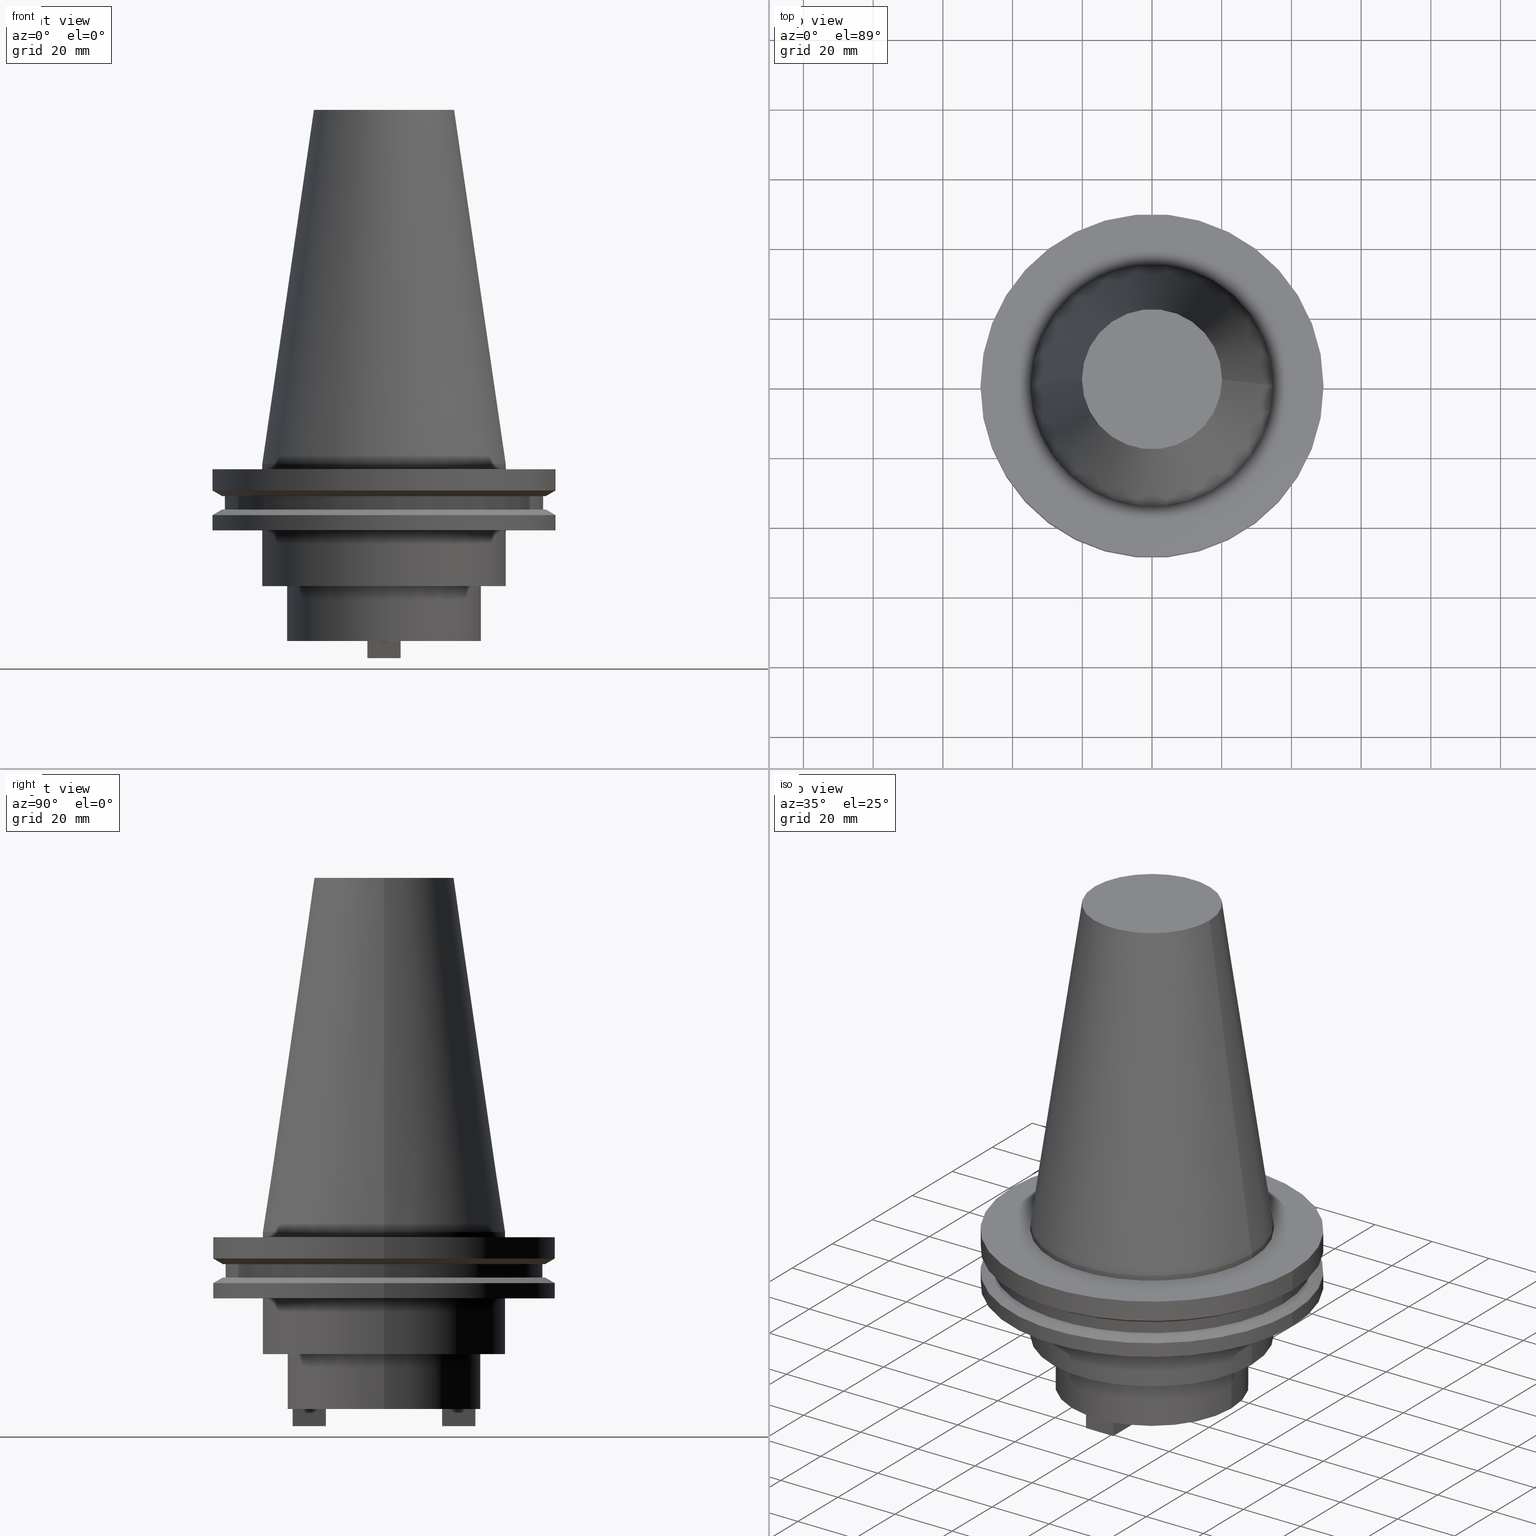
[diagram: canonical four-view strip — front | top / right | iso, engineering-drawing reading convention]
A machine part, canonical four-view strip (front | top / right | iso — engineering-drawing reading convention). The complete STEP part file that produces these views, byte-faithful:
ISO-10303-21;
HEADER;
FILE_DESCRIPTION (( 'STEP AP203' ),
    '1' );
FILE_NAME ('BCV50-SMC1_000-2.stp',
    '2022-03-03T19:53:46',
    ( '' ),
    ( '' ),
    'SwSTEP 2.0',
    'SolidWorks 2021',
    '' );
FILE_SCHEMA (( 'CONFIG_CONTROL_DESIGN' ));
ENDSEC;

DATA;
#1 = EDGE_LOOP ( 'NONE', ( #708, #64, #289, #433 ) ) ;
#2 = CARTESIAN_POINT ( 'NONE',  ( 0.000000000000000000, 34.92499999999999716, -35.04999999999999716 ) ) ;
#3 = EDGE_LOOP ( 'NONE', ( #956, #121, #147, #791 ) ) ;
#4 = DIRECTION ( 'NONE',  ( -0.000000000000000000, -0.000000000000000000, 1.000000000000000000 ) ) ;
#5 = ORIENTED_EDGE ( 'NONE', *, *, #435, .T. ) ;
#6 = CARTESIAN_POINT ( 'NONE',  ( 0.000000000000000000, 0.000000000000000000, -13.05499999999999794 ) ) ;
#7 = AXIS2_PLACEMENT_3D ( 'NONE', #198, #1036, #937 ) ;
#8 = DATE_AND_TIME ( #322, #297 ) ;
#9 = DIRECTION ( 'NONE',  ( -0.000000000000000000, -0.000000000000000000, 1.000000000000000000 ) ) ;
#10 = DIRECTION ( 'NONE',  ( -0.000000000000000000, -0.000000000000000000, 1.000000000000000000 ) ) ;
#11 = EDGE_CURVE ( 'NONE', #1060, #34, #319, .T. ) ;
#12 = UNCERTAINTY_MEASURE_WITH_UNIT (LENGTH_MEASURE( 1.000000000000000082E-05 ), #844, 'distance_accuracy_value', 'NONE');
#13 = ORIENTED_EDGE ( 'NONE', *, *, #447, .F. ) ;
#14 = DIRECTION ( 'NONE',  ( -1.821231995776175725E-16, -1.000000000000000000, 0.000000000000000000 ) ) ;
#15 = DIRECTION ( 'NONE',  ( -1.000000000000000000, 0.000000000000000000, -0.000000000000000000 ) ) ;
#16 = LINE ( 'NONE', #351, #332 ) ;
#17 = AXIS2_PLACEMENT_3D ( 'NONE', #417, #656, #907 ) ;
#18 = VERTEX_POINT ( 'NONE', #659 ) ;
#19 = AXIS2_PLACEMENT_3D ( 'NONE', #691, #361, #279 ) ;
#20 = ADVANCED_FACE ( 'NONE', ( #903 ), #993, .T. ) ;
#21 = FACE_OUTER_BOUND ( 'NONE', #224, .T. ) ;
#22 = CARTESIAN_POINT ( 'NONE',  ( 0.000000000000000000, 0.000000000000000000, -14.65761014474876944 ) ) ;
#23 = EDGE_LOOP ( 'NONE', ( #930, #972 ) ) ;
#24 = EDGE_CURVE ( 'NONE', #980, #34, #575, .T. ) ;
#25 = DIRECTION ( 'NONE',  ( 1.000000000000000000, 0.000000000000000000, 0.000000000000000000 ) ) ;
#26 = DIRECTION ( 'NONE',  ( 1.000000000000000000, 0.000000000000000000, 0.000000000000000000 ) ) ;
#27 = LINE ( 'NONE', #40, #749 ) ;
#28 = ORIENTED_EDGE ( 'NONE', *, *, #39, .F. ) ;
#29 = CARTESIAN_POINT ( 'NONE',  ( 4.762499999999986855, 16.68250000000001876, -55.70000000000000284 ) ) ;
#30 = EDGE_CURVE ( 'NONE', #754, #497, #503, .T. ) ;
#31 = ORIENTED_EDGE ( 'NONE', *, *, #1052, .F. ) ;
#32 = FACE_BOUND ( 'NONE', #239, .T. ) ;
#33 = DIRECTION ( 'NONE',  ( 1.000000000000000000, 0.000000000000000000, 0.000000000000000000 ) ) ;
#34 = VERTEX_POINT ( 'NONE', #73 ) ;
#35 = AXIS2_PLACEMENT_3D ( 'NONE', #6, #200, #617 ) ;
#36 = CIRCLE ( 'NONE', #581, 46.43919780457007818 ) ;
#37 = CARTESIAN_POINT ( 'NONE',  ( -4.762500000000017941, 26.20750000000002089, -55.70000000000000284 ) ) ;
#38 = CIRCLE ( 'NONE', #161, 49.21499999999998920 ) ;
#39 = EDGE_CURVE ( 'NONE', #1055, #896, #114, .T. ) ;
#40 = CARTESIAN_POINT ( 'NONE',  ( 4.762499999999990408, -16.68250000000000810, -55.70000000000000284 ) ) ;
#41 = ORIENTED_EDGE ( 'NONE', *, *, #830, .F. ) ;
#42 = DIRECTION ( 'NONE',  ( -1.000000000000000000, 0.000000000000000000, 0.000000000000000000 ) ) ;
#43 = EDGE_LOOP ( 'NONE', ( #61, #777 ) ) ;
#44 = DIRECTION ( 'NONE',  ( 1.000000000000000000, 0.000000000000000000, 0.000000000000000000 ) ) ;
#45 = EDGE_CURVE ( 'NONE', #980, #103, #132, .T. ) ;
#46 = CARTESIAN_POINT ( 'NONE',  ( 0.000000000000000000, 46.43919780457007818, -9.204999999999998295 ) ) ;
#47 = EDGE_LOOP ( 'NONE', ( #393, #561, #582, #827 ) ) ;
#48 = DIRECTION ( 'NONE',  ( 1.000000000000000000, 0.000000000000000000, -0.000000000000000000 ) ) ;
#49 = EDGE_LOOP ( 'NONE', ( #842, #651, #58, #88 ) ) ;
#50 = CARTESIAN_POINT ( 'NONE',  ( -45.64500000000000313, 5.589900314708094957E-15, -9.204999999999991189 ) ) ;
#51 = CIRCLE ( 'NONE', #695, 45.64500000000000313 ) ;
#52 = EDGE_LOOP ( 'NONE', ( #514, #864 ) ) ;
#53 = VECTOR ( 'NONE', #621, 1000.000000000000000 ) ;
#54 = LOCAL_TIME ( 13, 53, 46.00000000000000000, #784 ) ;
#55 = PLANE ( 'NONE',  #615 ) ;
#56 = FACE_OUTER_BOUND ( 'NONE', #532, .T. ) ;
#57 = EDGE_CURVE ( 'NONE', #103, #1060, #983, .T. ) ;
#58 = ORIENTED_EDGE ( 'NONE', *, *, #775, .T. ) ;
#59 = AXIS2_PLACEMENT_3D ( 'NONE', #438, #9, #427 ) ;
#60 = DIRECTION ( 'NONE',  ( 1.000000000000000000, 0.000000000000000000, 0.000000000000000000 ) ) ;
#61 = ORIENTED_EDGE ( 'NONE', *, *, #628, .F. ) ;
#62 = PRODUCT_RELATED_PRODUCT_CATEGORY ( 'detail', '', ( #909 ) ) ;
#63 = DIRECTION ( 'NONE',  ( 1.000000000000000000, 0.000000000000000000, 0.000000000000000000 ) ) ;
#64 = ORIENTED_EDGE ( 'NONE', *, *, #354, .F. ) ;
#65 = FACE_BOUND ( 'NONE', #1, .T. ) ;
#66 = DIRECTION ( 'NONE',  ( 0.1443082272672999988, 1.767266086135277066E-17, -0.9895327864921755756 ) ) ;
#67 = VERTEX_POINT ( 'NONE', #284 ) ;
#68 = VECTOR ( 'NONE', #242, 1000.000000000000000 ) ;
#69 = AXIS2_PLACEMENT_3D ( 'NONE', #192, #434, #356 ) ;
#70 = FACE_OUTER_BOUND ( 'NONE', #143, .T. ) ;
#71 = EDGE_CURVE ( 'NONE', #453, #524, #940, .T. ) ;
#72 = LINE ( 'NONE', #168, #579 ) ;
#73 = CARTESIAN_POINT ( 'NONE',  ( -49.21500000000000341, 6.027099222003699404E-15, -7.602389855251287187 ) ) ;
#74 = DIRECTION ( 'NONE',  ( -0.000000000000000000, -0.000000000000000000, 1.000000000000000000 ) ) ;
#75 = ADVANCED_FACE ( 'NONE', ( #21 ), #533, .T. ) ;
#76 = ORIENTED_EDGE ( 'NONE', *, *, #499, .F. ) ;
#77 = DIRECTION ( 'NONE',  ( -0.000000000000000000, -0.000000000000000000, 1.000000000000000000 ) ) ;
#78 = DIRECTION ( 'NONE',  ( 0.000000000000000000, 1.000000000000000000, 0.000000000000000000 ) ) ;
#79 = ORIENTED_EDGE ( 'NONE', *, *, #11, .F. ) ;
#80 = DIRECTION ( 'NONE',  ( -0.000000000000000000, -0.000000000000000000, 1.000000000000000000 ) ) ;
#81 = ORIENTED_EDGE ( 'NONE', *, *, #1085, .T. ) ;
#82 = PLANE ( 'NONE',  #631 ) ;
#83 = PERSON_AND_ORGANIZATION ( #555, #423 ) ;
#84 = ORIENTED_EDGE ( 'NONE', *, *, #435, .F. ) ;
#85 = DIRECTION ( 'NONE',  ( -0.000000000000000000, -0.000000000000000000, 1.000000000000000000 ) ) ;
#86 = AXIS2_PLACEMENT_3D ( 'NONE', #870, #290, #362 ) ;
#87 = VECTOR ( 'NONE', #390, 1000.000000000000000 ) ;
#88 = ORIENTED_EDGE ( 'NONE', *, *, #159, .T. ) ;
#89 = CARTESIAN_POINT ( 'NONE',  ( 0.000000000000000000, 0.000000000000000000, 101.5999999999999943 ) ) ;
#90 = PERSON_AND_ORGANIZATION_ROLE ( 'design_owner' ) ;
#91 = CARTESIAN_POINT ( 'NONE',  ( -4.762500000000017941, 26.20750000000002089, -55.70000000000000284 ) ) ;
#92 = EDGE_CURVE ( 'NONE', #99, #700, #1026, .T. ) ;
#93 = FACE_OUTER_BOUND ( 'NONE', #111, .T. ) ;
#94 = VERTEX_POINT ( 'NONE', #604 ) ;
#95 = LINE ( 'NONE', #456, #1035 ) ;
#96 = CC_DESIGN_PERSON_AND_ORGANIZATION_ASSIGNMENT ( #83, #335, ( #537 ) ) ;
#97 = APPLICATION_PROTOCOL_DEFINITION ( 'international standard', 'config_control_design', 1994, #771 ) ;
#98 = DIRECTION ( 'NONE',  ( -1.000000000000000000, 3.642463991552348493E-16, 0.000000000000000000 ) ) ;
#99 = VERTEX_POINT ( 'NONE', #517 ) ;
#100 = DIRECTION ( 'NONE',  ( 1.000000000000000000, 0.000000000000000000, 0.000000000000000000 ) ) ;
#101 = PERSON_AND_ORGANIZATION ( #555, #423 ) ;
#102 = FACE_OUTER_BOUND ( 'NONE', #424, .T. ) ;
#103 = VERTEX_POINT ( 'NONE', #204 ) ;
#104 = CARTESIAN_POINT ( 'NONE',  ( 4.762499999999981526, 26.20750000000001734, -55.70000000000000284 ) ) ;
#105 = CIRCLE ( 'NONE', #506, 20.10819343178871321 ) ;
#106 = ADVANCED_FACE ( 'NONE', ( #102 ), #278, .F. ) ;
#107 = CIRCLE ( 'NONE', #697, 49.21499999999998920 ) ;
#108 = PRODUCT_DEFINITION_FORMATION_WITH_SPECIFIED_SOURCE ( 'ANY', '', #909, .NOT_KNOWN. ) ;
#109 = APPROVAL_ROLE ( '' ) ;
#110 = LINE ( 'NONE', #29, #339 ) ;
#111 = EDGE_LOOP ( 'NONE', ( #540, #230, #500, #742 ) ) ;
#112 = DIRECTION ( 'NONE',  ( 1.000000000000000000, 0.000000000000000000, 0.000000000000000000 ) ) ;
#113 = EDGE_CURVE ( 'NONE', #477, #471, #862, .T. ) ;
#114 = CIRCLE ( 'NONE', #606, 46.43919780457007818 ) ;
#115 = DIRECTION ( 'NONE',  ( 1.000000000000000000, 0.000000000000000000, 0.000000000000000000 ) ) ;
#116 = VERTEX_POINT ( 'NONE', #523 ) ;
#117 = FACE_OUTER_BOUND ( 'NONE', #595, .T. ) ;
#118 = CARTESIAN_POINT ( 'NONE',  ( 4.762499999999988631, -26.20750000000000668, -50.79999999999999716 ) ) ;
#119 = DIRECTION ( 'NONE',  ( -0.000000000000000000, -0.000000000000000000, 1.000000000000000000 ) ) ;
#120 = EDGE_CURVE ( 'NONE', #220, #999, #110, .T. ) ;
#121 = ORIENTED_EDGE ( 'NONE', *, *, #394, .T. ) ;
#122 = DIRECTION ( 'NONE',  ( -0.000000000000000000, -0.000000000000000000, 1.000000000000000000 ) ) ;
#123 = DIRECTION ( 'NONE',  ( -0.1443082272672999988, 0.000000000000000000, -0.9895327864921755756 ) ) ;
#124 = CIRCLE ( 'NONE', #294, 34.92499999999999005 ) ;
#125 = CIRCLE ( 'NONE', #352, 45.64500000000000313 ) ;
#126 = CARTESIAN_POINT ( 'NONE',  ( 4.762499999999990408, -16.68250000000000810, -55.70000000000000284 ) ) ;
#127 = ORIENTED_EDGE ( 'NONE', *, *, #1019, .F. ) ;
#128 = EDGE_CURVE ( 'NONE', #999, #336, #349, .T. ) ;
#129 = DIRECTION ( 'NONE',  ( -0.000000000000000000, -0.000000000000000000, 1.000000000000000000 ) ) ;
#130 = DATE_AND_TIME ( #538, #197 ) ;
#131 = DIRECTION ( 'NONE',  ( -1.821231995776175725E-16, -1.000000000000000000, -0.000000000000000000 ) ) ;
#132 = CIRCLE ( 'NONE', #271, 46.43919780457007818 ) ;
#133 = ORIENTED_EDGE ( 'NONE', *, *, #866, .F. ) ;
#134 = LINE ( 'NONE', #795, #713 ) ;
#135 = EDGE_CURVE ( 'NONE', #220, #453, #432, .T. ) ;
#136 = ORIENTED_EDGE ( 'NONE', *, *, #209, .F. ) ;
#137 = LINE ( 'NONE', #634, #767 ) ;
#138 = VERTEX_POINT ( 'NONE', #619 ) ;
#139 = CARTESIAN_POINT ( 'NONE',  ( 4.762499999999981526, 26.20750000000001734, -55.70000000000000284 ) ) ;
#140 = ADVANCED_FACE ( 'NONE', ( #845 ), #948, .T. ) ;
#141 = DIRECTION ( 'NONE',  ( 1.000000000000000000, 0.000000000000000000, 0.000000000000000000 ) ) ;
#142 = CIRCLE ( 'NONE', #350, 5.754999999999987459 ) ;
#143 = EDGE_LOOP ( 'NONE', ( #1011, #805, #681, #365 ) ) ;
#144 = DIRECTION ( 'NONE',  ( -0.000000000000000000, -0.000000000000000000, 1.000000000000000000 ) ) ;
#145 = EDGE_CURVE ( 'NONE', #236, #491, #203, .T. ) ;
#146 = DIRECTION ( 'NONE',  ( 1.000000000000000000, -1.456985596620939003E-15, -0.000000000000000000 ) ) ;
#147 = ORIENTED_EDGE ( 'NONE', *, *, #329, .T. ) ;
#148 = DIRECTION ( 'NONE',  ( 0.000000000000000000, -0.000000000000000000, 1.000000000000000000 ) ) ;
#149 = VERTEX_POINT ( 'NONE', #612 ) ;
#150 = CARTESIAN_POINT ( 'NONE',  ( -49.21499999999998920, 6.027099222003697037E-15, -19.04999999999999716 ) ) ;
#151 = CARTESIAN_POINT ( 'NONE',  ( -46.43919780457007818, 5.687161494633754392E-15, -9.204999999999991189 ) ) ;
#152 = ADVANCED_FACE ( 'NONE', ( #694 ), #607, .F. ) ;
#153 = FACE_OUTER_BOUND ( 'NONE', #672, .T. ) ;
#154 = VERTEX_POINT ( 'NONE', #344 ) ;
#155 = LINE ( 'NONE', #734, #1070 ) ;
#156 = DIRECTION ( 'NONE',  ( -0.8660254037844273833, 1.060575238724893110E-16, 0.5000000000000195399 ) ) ;
#157 = CIRCLE ( 'NONE', #662, 34.92499999999999716 ) ;
#158 = CIRCLE ( 'NONE', #646, 5.754999999999987459 ) ;
#159 = EDGE_CURVE ( 'NONE', #370, #167, #482, .T. ) ;
#160 = CARTESIAN_POINT ( 'NONE',  ( 0.000000000000000000, 0.000000000000000000, -9.204999999999991189 ) ) ;
#161 = AXIS2_PLACEMENT_3D ( 'NONE', #774, #858, #366 ) ;
#162 = DIRECTION ( 'NONE',  ( -0.000000000000000000, -0.000000000000000000, 1.000000000000000000 ) ) ;
#163 =( NAMED_UNIT ( * ) PLANE_ANGLE_UNIT ( ) SI_UNIT ( $, .RADIAN. ) );
#164 = ORIENTED_EDGE ( 'NONE', *, *, #1019, .T. ) ;
#165 = CARTESIAN_POINT ( 'NONE',  ( 4.762499999999981526, 26.20750000000001734, -55.70000000000000284 ) ) ;
#166 = ADVANCED_FACE ( 'NONE', ( #769 ), #355, .T. ) ;
#167 = VERTEX_POINT ( 'NONE', #190 ) ;
#168 = CARTESIAN_POINT ( 'NONE',  ( -4.762500000000017053, -26.20750000000000668, -55.70000000000000284 ) ) ;
#169 = FACE_OUTER_BOUND ( 'NONE', #710, .T. ) ;
#170 = ORIENTED_EDGE ( 'NONE', *, *, #45, .F. ) ;
#171 = CARTESIAN_POINT ( 'NONE',  ( -46.43919780457007818, 0.000000000000000000, -13.05499999999999794 ) ) ;
#172 = EDGE_CURVE ( 'NONE', #754, #986, #853, .T. ) ;
#173 = LINE ( 'NONE', #677, #264 ) ;
#174 = ORIENTED_EDGE ( 'NONE', *, *, #380, .T. ) ;
#175 = VECTOR ( 'NONE', #495, 1000.000000000000000 ) ;
#176 = DIRECTION ( 'NONE',  ( 1.000000000000000000, 0.000000000000000000, 0.000000000000000000 ) ) ;
#177 = CC_DESIGN_DATE_AND_TIME_ASSIGNMENT ( #849, #658, ( #537 ) ) ;
#178 = ORIENTED_EDGE ( 'NONE', *, *, #1010, .F. ) ;
#179 = DIRECTION ( 'NONE',  ( -0.000000000000000000, -0.000000000000000000, 1.000000000000000000 ) ) ;
#180 = DIRECTION ( 'NONE',  ( 0.000000000000000000, 0.000000000000000000, -1.000000000000000000 ) ) ;
#181 = CARTESIAN_POINT ( 'NONE',  ( 4.762499999999986855, 16.68250000000001876, -55.70000000000000284 ) ) ;
#182 = ORIENTED_EDGE ( 'NONE', *, *, #57, .F. ) ;
#183 = DIRECTION ( 'NONE',  ( -0.000000000000000000, -0.000000000000000000, 1.000000000000000000 ) ) ;
#184 = ORIENTED_EDGE ( 'NONE', *, *, #412, .F. ) ;
#185 = APPLICATION_PROTOCOL_DEFINITION ( 'international standard', 'config_control_design', 1994, #626 ) ;
#186 = CARTESIAN_POINT ( 'NONE',  ( 46.43919780457007818, 0.000000000000000000, -9.204999999999991189 ) ) ;
#187 = ORIENTED_EDGE ( 'NONE', *, *, #848, .T. ) ;
#188 = FACE_OUTER_BOUND ( 'NONE', #49, .T. ) ;
#189 = EDGE_CURVE ( 'NONE', #1055, #167, #359, .T. ) ;
#190 = CARTESIAN_POINT ( 'NONE',  ( 49.21499999999998920, 0.000000000000000000, -14.65761014474876944 ) ) ;
#191 = ORIENTED_EDGE ( 'NONE', *, *, #657, .T. ) ;
#192 = CARTESIAN_POINT ( 'NONE',  ( 0.000000000000000000, 49.21499999999999631, -1.499999999999992895 ) ) ;
#193 = ADVANCED_FACE ( 'NONE', ( #804 ), #637, .T. ) ;
#194 = VECTOR ( 'NONE', #237, 1000.000000000000000 ) ;
#195 = ORIENTED_EDGE ( 'NONE', *, *, #11, .T. ) ;
#196 = VECTOR ( 'NONE', #978, 1000.000000000000114 ) ;
#197 = LOCAL_TIME ( 13, 53, 46.00000000000000000, #277 ) ;
#198 = CARTESIAN_POINT ( 'NONE',  ( 0.000000000000000000, 0.000000000000000000, -14.65761014474876944 ) ) ;
#199 = LINE ( 'NONE', #441, #664 ) ;
#200 = DIRECTION ( 'NONE',  ( -0.000000000000000000, -0.000000000000000000, 1.000000000000000000 ) ) ;
#201 = ORIENTED_EDGE ( 'NONE', *, *, #814, .T. ) ;
#202 = APPROVAL_DATE_TIME ( #130, #1068 ) ;
#203 = CIRCLE ( 'NONE', #59, 49.21499999999999631 ) ;
#204 = CARTESIAN_POINT ( 'NONE',  ( 46.43919780457007818, 0.000000000000000000, -9.204999999999991189 ) ) ;
#205 = CARTESIAN_POINT ( 'NONE',  ( -34.92499999999999716, 4.277078946022130887E-15, 101.5999999999999943 ) ) ;
#206 = FACE_OUTER_BOUND ( 'NONE', #608, .T. ) ;
#207 = VERTEX_POINT ( 'NONE', #296 ) ;
#208 = SHAPE_DEFINITION_REPRESENTATION ( #735, #974 ) ;
#209 = EDGE_CURVE ( 'NONE', #389, #840, #872, .T. ) ;
#210 = DIRECTION ( 'NONE',  ( -0.000000000000000000, -0.000000000000000000, 1.000000000000000000 ) ) ;
#211 = ORIENTED_EDGE ( 'NONE', *, *, #261, .T. ) ;
#212 = CARTESIAN_POINT ( 'NONE',  ( -4.762500000000017941, 26.20750000000002089, -55.70000000000000284 ) ) ;
#213 = VECTOR ( 'NONE', #381, 1000.000000000000114 ) ;
#214 = CIRCLE ( 'NONE', #856, 45.64500000000000313 ) ;
#215 = FACE_OUTER_BOUND ( 'NONE', #257, .T. ) ;
#216 = EDGE_LOOP ( 'NONE', ( #635, #563 ) ) ;
#217 = CARTESIAN_POINT ( 'NONE',  ( 27.80030000000000001, 0.000000000000000000, 0.000000000000000000 ) ) ;
#218 = EDGE_LOOP ( 'NONE', ( #201, #521, #643, #305 ) ) ;
#219 = CARTESIAN_POINT ( 'NONE',  ( 0.000000000000000000, 0.000000000000000000, -35.04999999999999716 ) ) ;
#220 = VERTEX_POINT ( 'NONE', #288 ) ;
#221 = EDGE_CURVE ( 'NONE', #703, #389, #955, .T. ) ;
#222 = DIRECTION ( 'NONE',  ( -0.000000000000000000, -0.000000000000000000, 1.000000000000000000 ) ) ;
#223 = DIRECTION ( 'NONE',  ( 1.000000000000000000, 0.000000000000000000, 0.000000000000000000 ) ) ;
#224 = EDGE_LOOP ( 'NONE', ( #439, #436, #763, #740 ) ) ;
#225 = DIRECTION ( 'NONE',  ( 1.000000000000000000, 0.000000000000000000, 0.000000000000000000 ) ) ;
#226 = ADVANCED_FACE ( 'NONE', ( #215 ), #551, .F. ) ;
#227 = VERTEX_POINT ( 'NONE', #709 ) ;
#228 = DIRECTION ( 'NONE',  ( -1.000000000000000000, 0.000000000000000000, 0.000000000000000000 ) ) ;
#229 = CIRCLE ( 'NONE', #836, 5.754999999999984794 ) ;
#230 = ORIENTED_EDGE ( 'NONE', *, *, #232, .T. ) ;
#231 = CARTESIAN_POINT ( 'NONE',  ( 0.000000000000000000, 0.000000000000000000, -50.79999999999999716 ) ) ;
#232 = EDGE_CURVE ( 'NONE', #154, #116, #157, .T. ) ;
#233 = LINE ( 'NONE', #819, #890 ) ;
#234 = CARTESIAN_POINT ( 'NONE',  ( 0.000000000000000000, 0.000000000000000000, 101.5999999999999943 ) ) ;
#235 = FACE_BOUND ( 'NONE', #910, .T. ) ;
#236 = VERTEX_POINT ( 'NONE', #888 ) ;
#237 = DIRECTION ( 'NONE',  ( -2.731847993664259274E-16, 1.000000000000000000, 0.000000000000000000 ) ) ;
#238 = EDGE_CURVE ( 'NONE', #466, #227, #459, .T. ) ;
#239 = EDGE_LOOP ( 'NONE', ( #1029, #84 ) ) ;
#240 = DIRECTION ( 'NONE',  ( -0.000000000000000000, -0.000000000000000000, 1.000000000000000000 ) ) ;
#241 = EDGE_LOOP ( 'NONE', ( #404, #603 ) ) ;
#242 = DIRECTION ( 'NONE',  ( 6.374311985216615162E-16, -1.000000000000000000, 0.000000000000000000 ) ) ;
#243 =( NAMED_UNIT ( * ) SI_UNIT ( $, .STERADIAN. ) SOLID_ANGLE_UNIT ( ) );
#244 = DIRECTION ( 'NONE',  ( -0.000000000000000000, -0.000000000000000000, 1.000000000000000000 ) ) ;
#245 = CONICAL_SURFACE ( 'NONE', #384, 46.43919780457007818, 1.047197551196575205 ) ;
#246 = AXIS2_PLACEMENT_3D ( 'NONE', #212, #945, #877 ) ;
#247 = DIRECTION ( 'NONE',  ( -0.000000000000000000, -0.000000000000000000, 1.000000000000000000 ) ) ;
#248 = ORIENTED_EDGE ( 'NONE', *, *, #731, .F. ) ;
#249 = CARTESIAN_POINT ( 'NONE',  ( -4.762500000000017053, -26.20750000000000668, -50.79999999999999716 ) ) ;
#250 = DIRECTION ( 'NONE',  ( 1.000000000000000000, 0.000000000000000000, 0.000000000000000000 ) ) ;
#251 = EDGE_LOOP ( 'NONE', ( #1034, #1086, #568, #76 ) ) ;
#252 = CARTESIAN_POINT ( 'NONE',  ( 0.000000000000000000, 0.000000000000000000, 0.000000000000000000 ) ) ;
#253 = AXIS2_PLACEMENT_3D ( 'NONE', #686, #1014, #600 ) ;
#254 = EDGE_CURVE ( 'NONE', #323, #999, #137, .T. ) ;
#255 = DIRECTION ( 'NONE',  ( 0.000000000000000000, -0.000000000000000000, 1.000000000000000000 ) ) ;
#256 = COORDINATED_UNIVERSAL_TIME_OFFSET ( 6, 0, .BEHIND. ) ;
#257 = EDGE_LOOP ( 'NONE', ( #1073, #184, #469, #810 ) ) ;
#258 = CARTESIAN_POINT ( 'NONE',  ( -27.80030000000000001, 3.404554841033616429E-15, -35.04999999999999716 ) ) ;
#259 = ORIENTED_EDGE ( 'NONE', *, *, #340, .F. ) ;
#260 = CARTESIAN_POINT ( 'NONE',  ( 34.92499999999999005, 4.277078946022130098E-15, 0.000000000000000000 ) ) ;
#261 = EDGE_CURVE ( 'NONE', #524, #625, #1059, .T. ) ;
#262 = COORDINATED_UNIVERSAL_TIME_OFFSET ( 6, 0, .BEHIND. ) ;
#263 = CARTESIAN_POINT ( 'NONE',  ( 0.000000000000000000, 0.000000000000000000, 101.5999999999999943 ) ) ;
#264 = VECTOR ( 'NONE', #129, 1000.000000000000000 ) ;
#265 = FACE_OUTER_BOUND ( 'NONE', #43, .T. ) ;
#266 = CONICAL_SURFACE ( 'NONE', #511, 34.92499999999999005, 0.1448138465474119452 ) ;
#267 = ORIENTED_EDGE ( 'NONE', *, *, #39, .T. ) ;
#268 = ADVANCED_FACE ( 'NONE', ( #465 ), #959, .T. ) ;
#269 = DIRECTION ( 'NONE',  ( -0.000000000000000000, -0.000000000000000000, 1.000000000000000000 ) ) ;
#270 = DIRECTION ( 'NONE',  ( -1.000000000000000000, 3.642463991552348493E-16, 0.000000000000000000 ) ) ;
#271 = AXIS2_PLACEMENT_3D ( 'NONE', #813, #649, #312 ) ;
#272 = PERSON_AND_ORGANIZATION_ROLE ( 'classification_officer' ) ;
#273 = CARTESIAN_POINT ( 'NONE',  ( 4.762499999999986855, 16.68250000000001876, -50.79999999999999716 ) ) ;
#274 = ADVANCED_FACE ( 'NONE', ( #56, #793 ), #629, .F. ) ;
#275 = ORIENTED_EDGE ( 'NONE', *, *, #866, .T. ) ;
#276 = DIRECTION ( 'NONE',  ( -0.000000000000000000, -0.000000000000000000, 1.000000000000000000 ) ) ;
#277 = COORDINATED_UNIVERSAL_TIME_OFFSET ( 6, 0, .BEHIND. ) ;
#278 = CYLINDRICAL_SURFACE ( 'NONE', #253, 5.754999999999984794 ) ;
#279 = DIRECTION ( 'NONE',  ( 6.374311985216615162E-16, -1.000000000000000000, 0.000000000000000000 ) ) ;
#280 = DIRECTION ( 'NONE',  ( -0.000000000000000000, -0.000000000000000000, 1.000000000000000000 ) ) ;
#281 = VECTOR ( 'NONE', #77, 1000.000000000000000 ) ;
#282 = ORIENTED_EDGE ( 'NONE', *, *, #128, .T. ) ;
#283 = VECTOR ( 'NONE', #144, 1000.000000000000000 ) ;
#284 = CARTESIAN_POINT ( 'NONE',  ( -4.762500000000019718, -16.68249999999999034, -50.79999999999999716 ) ) ;
#285 = PLANE ( 'NONE',  #19 ) ;
#286 = CARTESIAN_POINT ( 'NONE',  ( 0.000000000000000000, 0.000000000000000000, -19.04999999999999716 ) ) ;
#287 = EDGE_CURVE ( 'NONE', #700, #913, #229, .T. ) ;
#288 = CARTESIAN_POINT ( 'NONE',  ( 4.762499999999986855, 16.68250000000001876, -55.70000000000000284 ) ) ;
#289 = ORIENTED_EDGE ( 'NONE', *, *, #576, .F. ) ;
#290 = DIRECTION ( 'NONE',  ( 0.000000000000000000, 0.000000000000000000, -1.000000000000000000 ) ) ;
#291 = CARTESIAN_POINT ( 'NONE',  ( 4.762499999999988631, -26.20750000000000668, -55.70000000000000284 ) ) ;
#292 = ORIENTED_EDGE ( 'NONE', *, *, #918, .T. ) ;
#293 = CARTESIAN_POINT ( 'NONE',  ( 0.000000000000000000, 0.000000000000000000, -9.204999999999991189 ) ) ;
#294 = AXIS2_PLACEMENT_3D ( 'NONE', #317, #1000, #485 ) ;
#295 = VECTOR ( 'NONE', #668, 1000.000000000000000 ) ;
#296 = CARTESIAN_POINT ( 'NONE',  ( 49.21499999999998920, 0.000000000000000000, -19.04999999999999716 ) ) ;
#297 = LOCAL_TIME ( 13, 53, 46.00000000000000000, #262 ) ;
#298 = EDGE_CURVE ( 'NONE', #207, #167, #391, .T. ) ;
#299 = ORIENTED_EDGE ( 'NONE', *, *, #380, .F. ) ;
#300 = CARTESIAN_POINT ( 'NONE',  ( 49.21499999999999631, 0.000000000000000000, 101.5999999999999943 ) ) ;
#301 = DIRECTION ( 'NONE',  ( 0.000000000000000000, 0.000000000000000000, -1.000000000000000000 ) ) ;
#302 = ORIENTED_EDGE ( 'NONE', *, *, #912, .T. ) ;
#303 = ADVANCED_FACE ( 'NONE', ( #722 ), #377, .T. ) ;
#304 = CARTESIAN_POINT ( 'NONE',  ( -5.754999999999984794, 7.047842329093000006E-16, -35.04999999999999716 ) ) ;
#305 = ORIENTED_EDGE ( 'NONE', *, *, #934, .F. ) ;
#306 = CARTESIAN_POINT ( 'NONE',  ( 49.21499999999998920, 0.000000000000000000, 101.5999999999999943 ) ) ;
#307 = ORIENTED_EDGE ( 'NONE', *, *, #823, .T. ) ;
#308 = CARTESIAN_POINT ( 'NONE',  ( 34.92499999999999005, 0.000000000000000000, -1.499999999999987566 ) ) ;
#309 = EDGE_LOOP ( 'NONE', ( #1022, #302, #408, #1002 ) ) ;
#310 = AXIS2_PLACEMENT_3D ( 'NONE', #776, #269, #25 ) ;
#311 = FACE_OUTER_BOUND ( 'NONE', #309, .T. ) ;
#312 = DIRECTION ( 'NONE',  ( 1.000000000000000000, 0.000000000000000000, 0.000000000000000000 ) ) ;
#313 = APPROVAL_PERSON_ORGANIZATION ( #678, #403, #1007 ) ;
#314 = CARTESIAN_POINT ( 'NONE',  ( 0.000000000000000000, 27.80030000000000001, -50.79999999999999716 ) ) ;
#315 = VERTEX_POINT ( 'NONE', #50 ) ;
#316 = ADVANCED_FACE ( 'NONE', ( #968 ), #387, .T. ) ;
#317 = CARTESIAN_POINT ( 'NONE',  ( 0.000000000000000000, 0.000000000000000000, -1.499999999999987566 ) ) ;
#318 = ORIENTED_EDGE ( 'NONE', *, *, #135, .F. ) ;
#319 = CIRCLE ( 'NONE', #464, 49.21500000000000341 ) ;
#320 = CARTESIAN_POINT ( 'NONE',  ( 0.000000000000000000, 0.000000000000000000, -19.04999999999999716 ) ) ;
#321 = DIRECTION ( 'NONE',  ( -0.000000000000000000, -0.000000000000000000, 1.000000000000000000 ) ) ;
#322 = CALENDAR_DATE ( 2022, 3, 3 ) ;
#323 = VERTEX_POINT ( 'NONE', #867 ) ;
#324 = CARTESIAN_POINT ( 'NONE',  ( 34.92499999999999716, 0.000000000000000000, 101.5999999999999943 ) ) ;
#325 = EDGE_LOOP ( 'NONE', ( #549, #5, #411, #947 ) ) ;
#326 = CARTESIAN_POINT ( 'NONE',  ( 45.64500000000000313, 0.000000000000000000, -13.05499999999999794 ) ) ;
#327 = CARTESIAN_POINT ( 'NONE',  ( 0.000000000000000000, 0.000000000000000000, -7.602389855251287187 ) ) ;
#328 = VECTOR ( 'NONE', #123, 999.9999999999998863 ) ;
#329 = EDGE_CURVE ( 'NONE', #1063, #220, #452, .T. ) ;
#330 = CIRCLE ( 'NONE', #601, 27.80030000000000001 ) ;
#331 = DIRECTION ( 'NONE',  ( 1.000000000000000000, 0.000000000000000000, 0.000000000000000000 ) ) ;
#332 = VECTOR ( 'NONE', #605, 1000.000000000000000 ) ;
#333 = VERTEX_POINT ( 'NONE', #991 ) ;
#334 = DIRECTION ( 'NONE',  ( 0.000000000000000000, -0.000000000000000000, 1.000000000000000000 ) ) ;
#335 = PERSON_AND_ORGANIZATION_ROLE ( 'creator' ) ;
#336 = VERTEX_POINT ( 'NONE', #489 ) ;
#337 = EDGE_CURVE ( 'NONE', #34, #1060, #440, .T. ) ;
#338 = CARTESIAN_POINT ( 'NONE',  ( -34.92499999999999005, 4.277078946022130098E-15, 101.5999999999999943 ) ) ;
#339 = VECTOR ( 'NONE', #933, 1000.000000000000000 ) ;
#340 = EDGE_CURVE ( 'NONE', #99, #18, #142, .T. ) ;
#341 = ORIENTED_EDGE ( 'NONE', *, *, #823, .F. ) ;
#342 = LINE ( 'NONE', #952, #328 ) ;
#343 = CALENDAR_DATE ( 2022, 3, 3 ) ;
#344 = CARTESIAN_POINT ( 'NONE',  ( -34.92499999999999716, 4.277078946022130887E-15, -35.04999999999999716 ) ) ;
#345 = LINE ( 'NONE', #680, #295 ) ;
#346 = ADVANCED_FACE ( 'NONE', ( #311 ), #479, .T. ) ;
#347 = ORIENTED_EDGE ( 'NONE', *, *, #340, .T. ) ;
#348 = DIRECTION ( 'NONE',  ( 0.000000000000000000, -0.000000000000000000, 1.000000000000000000 ) ) ;
#349 = LINE ( 'NONE', #273, #951 ) ;
#350 = AXIS2_PLACEMENT_3D ( 'NONE', #574, #739, #501 ) ;
#351 = CARTESIAN_POINT ( 'NONE',  ( 5.754999999999984794, 0.000000000000000000, 0.000000000000000000 ) ) ;
#352 = AXIS2_PLACEMENT_3D ( 'NONE', #1077, #4, #911 ) ;
#353 = ORIENTED_EDGE ( 'NONE', *, *, #596, .T. ) ;
#354 = EDGE_CURVE ( 'NONE', #840, #988, #671, .T. ) ;
#355 = CYLINDRICAL_SURFACE ( 'NONE', #873, 49.21499999999999631 ) ;
#356 = DIRECTION ( 'NONE',  ( -1.000000000000000000, 0.000000000000000000, -0.000000000000000000 ) ) ;
#357 = VECTOR ( 'NONE', #526, 1000.000000000000000 ) ;
#358 = PERSON_AND_ORGANIZATION ( #555, #423 ) ;
#359 = LINE ( 'NONE', #560, #213 ) ;
#360 = ORIENTED_EDGE ( 'NONE', *, *, #113, .T. ) ;
#361 = DIRECTION ( 'NONE',  ( -1.000000000000000000, -6.374311985216615162E-16, 0.000000000000000000 ) ) ;
#362 = DIRECTION ( 'NONE',  ( -1.000000000000000000, 0.000000000000000000, 0.000000000000000000 ) ) ;
#363 = ORIENTED_EDGE ( 'NONE', *, *, #238, .F. ) ;
#364 = CARTESIAN_POINT ( 'NONE',  ( 0.000000000000000000, 0.000000000000000000, 101.5999999999999943 ) ) ;
#365 = ORIENTED_EDGE ( 'NONE', *, *, #751, .T. ) ;
#366 = DIRECTION ( 'NONE',  ( 1.000000000000000000, 0.000000000000000000, 0.000000000000000000 ) ) ;
#367 = EDGE_CURVE ( 'NONE', #419, #370, #233, .T. ) ;
#368 = VECTOR ( 'NONE', #653, 1000.000000000000000 ) ;
#369 = FACE_OUTER_BOUND ( 'NONE', #796, .T. ) ;
#370 = VERTEX_POINT ( 'NONE', #1075 ) ;
#371 = AXIS2_PLACEMENT_3D ( 'NONE', #963, #558, #60 ) ;
#372 = AXIS2_PLACEMENT_3D ( 'NONE', #1028, #276, #696 ) ;
#373 = DIRECTION ( 'NONE',  ( 0.000000000000000000, 0.000000000000000000, -1.000000000000000000 ) ) ;
#374 = CC_DESIGN_DATE_AND_TIME_ASSIGNMENT ( #865, #376, ( #530 ) ) ;
#375 = PLANE ( 'NONE',  #786 ) ;
#376 = DATE_TIME_ROLE ( 'classification_date' ) ;
#377 = CYLINDRICAL_SURFACE ( 'NONE', #1088, 34.92499999999999716 ) ;
#378 = VERTEX_POINT ( 'NONE', #397 ) ;
#379 = CARTESIAN_POINT ( 'NONE',  ( 0.000000000000000000, 0.000000000000000000, -13.05499999999999794 ) ) ;
#380 = EDGE_CURVE ( 'NONE', #625, #323, #155, .T. ) ;
#381 = DIRECTION ( 'NONE',  ( 0.8660254037844169472, 1.060575238724880168E-16, -0.5000000000000375255 ) ) ;
#382 = ORIENTED_EDGE ( 'NONE', *, *, #731, .T. ) ;
#383 = FACE_OUTER_BOUND ( 'NONE', #1066, .T. ) ;
#384 = AXIS2_PLACEMENT_3D ( 'NONE', #515, #280, #760 ) ;
#385 = AXIS2_PLACEMENT_3D ( 'NONE', #931, #247, #331 ) ;
#386 = EDGE_CURVE ( 'NONE', #471, #477, #105, .T. ) ;
#387 = PLANE ( 'NONE',  #613 ) ;
#388 = AXIS2_PLACEMENT_3D ( 'NONE', #1023, #781, #270 ) ;
#389 = VERTEX_POINT ( 'NONE', #413 ) ;
#390 = DIRECTION ( 'NONE',  ( -0.000000000000000000, -0.000000000000000000, 1.000000000000000000 ) ) ;
#391 = LINE ( 'NONE', #306, #455 ) ;
#392 = AXIS2_PLACEMENT_3D ( 'NONE', #448, #855, #780 ) ;
#393 = ORIENTED_EDGE ( 'NONE', *, *, #24, .F. ) ;
#394 = EDGE_CURVE ( 'NONE', #524, #1063, #812, .T. ) ;
#395 = LINE ( 'NONE', #554, #892 ) ;
#396 = EDGE_LOOP ( 'NONE', ( #282, #932, #318, #570 ) ) ;
#397 = CARTESIAN_POINT ( 'NONE',  ( -4.762500000000017053, -26.20750000000000668, -55.70000000000000284 ) ) ;
#398 = CARTESIAN_POINT ( 'NONE',  ( 34.92499999999999005, 0.000000000000000000, 101.5999999999999943 ) ) ;
#399 = EDGE_CURVE ( 'NONE', #149, #67, #743, .T. ) ;
#400 = FACE_BOUND ( 'NONE', #23, .T. ) ;
#401 = VECTOR ( 'NONE', #1053, 1000.000000000000000 ) ;
#402 = DIRECTION ( 'NONE',  ( 1.000000000000000000, 0.000000000000000000, 0.000000000000000000 ) ) ;
#403 = APPROVAL ( #908, 'UNSPECIFIED' ) ;
#404 = ORIENTED_EDGE ( 'NONE', *, *, #848, .F. ) ;
#405 = FACE_BOUND ( 'NONE', #824, .T. ) ;
#406 = EDGE_CURVE ( 'NONE', #471, #497, #571, .T. ) ;
#407 = CARTESIAN_POINT ( 'NONE',  ( -20.10819343178871321, 0.000000000000000000, 101.5999999999999801 ) ) ;
#408 = ORIENTED_EDGE ( 'NONE', *, *, #685, .F. ) ;
#409 = VECTOR ( 'NONE', #1030, 1000.000000000000000 ) ;
#410 = LINE ( 'NONE', #324, #529 ) ;
#411 = ORIENTED_EDGE ( 'NONE', *, *, #30, .T. ) ;
#412 = EDGE_CURVE ( 'NONE', #703, #773, #825, .T. ) ;
#413 = CARTESIAN_POINT ( 'NONE',  ( 4.762499999999988631, -26.20750000000000668, -55.70000000000000284 ) ) ;
#414 = VERTEX_POINT ( 'NONE', #987 ) ;
#415 = FACE_OUTER_BOUND ( 'NONE', #47, .T. ) ;
#416 = ORIENTED_EDGE ( 'NONE', *, *, #159, .F. ) ;
#417 = CARTESIAN_POINT ( 'NONE',  ( 0.000000000000000000, 0.000000000000000000, -7.602389855251287187 ) ) ;
#418 = CC_DESIGN_PERSON_AND_ORGANIZATION_ASSIGNMENT ( #502, #90, ( #909 ) ) ;
#419 = VERTEX_POINT ( 'NONE', #150 ) ;
#420 = AXIS2_PLACEMENT_3D ( 'NONE', #789, #1045, #925 ) ;
#421 = AXIS2_PLACEMENT_3D ( 'NONE', #139, #569, #801 ) ;
#422 = CARTESIAN_POINT ( 'NONE',  ( 0.000000000000000000, 0.000000000000000000, 101.5999999999999943 ) ) ;
#423 = ORGANIZATION ( 'UNSPECIFIED', 'UNSPECIFIED', '' ) ;
#424 = EDGE_LOOP ( 'NONE', ( #259, #746, #483, #31 ) ) ;
#425 = PLANE ( 'NONE',  #420 ) ;
#426 = CALENDAR_DATE ( 2022, 3, 3 ) ;
#427 = DIRECTION ( 'NONE',  ( 1.000000000000000000, 0.000000000000000000, 0.000000000000000000 ) ) ;
#428 = DIRECTION ( 'NONE',  ( -0.000000000000000000, -0.000000000000000000, 1.000000000000000000 ) ) ;
#429 = ORIENTED_EDGE ( 'NONE', *, *, #468, .T. ) ;
#430 = DIRECTION ( 'NONE',  ( -0.000000000000000000, -0.000000000000000000, 1.000000000000000000 ) ) ;
#431 = APPROVAL_ROLE ( '' ) ;
#432 = LINE ( 'NONE', #181, #536 ) ;
#433 = ORIENTED_EDGE ( 'NONE', *, *, #461, .F. ) ;
#434 = DIRECTION ( 'NONE',  ( 0.000000000000000000, 0.000000000000000000, -1.000000000000000000 ) ) ;
#435 = EDGE_CURVE ( 'NONE', #986, #754, #124, .T. ) ;
#436 = ORIENTED_EDGE ( 'NONE', *, *, #493, .T. ) ;
#437 = CARTESIAN_POINT ( 'NONE',  ( 0.000000000000000000, 0.000000000000000000, -35.04999999999999716 ) ) ;
#438 = CARTESIAN_POINT ( 'NONE',  ( 0.000000000000000000, 0.000000000000000000, -1.499999999999987566 ) ) ;
#439 = ORIENTED_EDGE ( 'NONE', *, *, #981, .F. ) ;
#440 = CIRCLE ( 'NONE', #17, 49.21500000000000341 ) ;
#441 = CARTESIAN_POINT ( 'NONE',  ( -45.64500000000000313, 5.589900314708094957E-15, 101.5999999999999943 ) ) ;
#442 = CIRCLE ( 'NONE', #548, 27.80030000000000001 ) ;
#443 = LOCAL_TIME ( 13, 53, 46.00000000000000000, #522 ) ;
#444 = CARTESIAN_POINT ( 'NONE',  ( 0.000000000000000000, 0.000000000000000000, 101.5999999999999943 ) ) ;
#445 = ORIENTED_EDGE ( 'NONE', *, *, #254, .T. ) ;
#446 = DIRECTION ( 'NONE',  ( -1.000000000000000000, 0.000000000000000000, 0.000000000000000000 ) ) ;
#447 = EDGE_CURVE ( 'NONE', #378, #149, #72, .T. ) ;
#448 = CARTESIAN_POINT ( 'NONE',  ( 0.000000000000000000, 0.000000000000000000, 101.5999999999999801 ) ) ;
#449 = DIRECTION ( 'NONE',  ( -0.000000000000000000, -0.000000000000000000, 1.000000000000000000 ) ) ;
#450 = CARTESIAN_POINT ( 'NONE',  ( 49.21499999999999631, 0.000000000000000000, -1.499999999999987566 ) ) ;
#451 = PERSON_AND_ORGANIZATION ( #555, #423 ) ;
#452 = LINE ( 'NONE', #699, #68 ) ;
#453 = VERTEX_POINT ( 'NONE', #727 ) ;
#454 = DIRECTION ( 'NONE',  ( -0.000000000000000000, -0.000000000000000000, 1.000000000000000000 ) ) ;
#455 = VECTOR ( 'NONE', #798, 1000.000000000000000 ) ;
#456 = CARTESIAN_POINT ( 'NONE',  ( -4.762500000000017941, 26.20750000000002089, -50.79999999999999716 ) ) ;
#457 = AXIS2_PLACEMENT_3D ( 'NONE', #160, #85, #922 ) ;
#458 = VECTOR ( 'NONE', #496, 1000.000000000000000 ) ;
#459 = LINE ( 'NONE', #883, #1016 ) ;
#460 = ORIENTED_EDGE ( 'NONE', *, *, #1032, .T. ) ;
#461 = EDGE_CURVE ( 'NONE', #67, #773, #1084, .T. ) ;
#462 = FACE_BOUND ( 'NONE', #241, .T. ) ;
#463 = EDGE_LOOP ( 'NONE', ( #900, #736 ) ) ;
#464 = AXIS2_PLACEMENT_3D ( 'NONE', #327, #486, #921 ) ;
#465 = FACE_OUTER_BOUND ( 'NONE', #473, .T. ) ;
#466 = VERTEX_POINT ( 'NONE', #326 ) ;
#467 = PLANE ( 'NONE',  #1056 ) ;
#468 = EDGE_CURVE ( 'NONE', #988, #67, #663, .T. ) ;
#469 = ORIENTED_EDGE ( 'NONE', *, *, #610, .F. ) ;
#470 = CARTESIAN_POINT ( 'NONE',  ( 0.000000000000000000, 0.000000000000000000, -14.65761014474876944 ) ) ;
#471 = VERTEX_POINT ( 'NONE', #587 ) ;
#472 = CARTESIAN_POINT ( 'NONE',  ( 27.80030000000000001, 0.000000000000000000, -35.04999999999999716 ) ) ;
#473 = EDGE_LOOP ( 'NONE', ( #28, #527, #509, #589 ) ) ;
#474 = AXIS2_PLACEMENT_3D ( 'NONE', #126, #785, #1062 ) ;
#475 = AXIS2_PLACEMENT_3D ( 'NONE', #989, #240, #602 ) ;
#476 = CARTESIAN_POINT ( 'NONE',  ( 4.762499999999988631, -26.20750000000000668, -55.70000000000000284 ) ) ;
#477 = VERTEX_POINT ( 'NONE', #407 ) ;
#478 = LINE ( 'NONE', #644, #196 ) ;
#479 = CYLINDRICAL_SURFACE ( 'NONE', #835, 34.92499999999999005 ) ;
#480 = AXIS2_PLACEMENT_3D ( 'NONE', #263, #929, #115 ) ;
#481 = ADVANCED_FACE ( 'NONE', ( #914 ), #82, .F. ) ;
#482 = CIRCLE ( 'NONE', #7, 49.21499999999998920 ) ;
#483 = ORIENTED_EDGE ( 'NONE', *, *, #287, .T. ) ;
#484 = CYLINDRICAL_SURFACE ( 'NONE', #802, 49.21499999999998920 ) ;
#485 = DIRECTION ( 'NONE',  ( 1.000000000000000000, 0.000000000000000000, 0.000000000000000000 ) ) ;
#486 = DIRECTION ( 'NONE',  ( -0.000000000000000000, -0.000000000000000000, 1.000000000000000000 ) ) ;
#487 = DIRECTION ( 'NONE',  ( 0.000000000000000000, 0.000000000000000000, 1.000000000000000000 ) ) ;
#488 = VECTOR ( 'NONE', #321, 1000.000000000000000 ) ;
#489 = CARTESIAN_POINT ( 'NONE',  ( -4.762500000000018829, 16.68250000000002231, -50.79999999999999716 ) ) ;
#490 = AXIS2_PLACEMENT_3D ( 'NONE', #660, #585, #26 ) ;
#491 = VERTEX_POINT ( 'NONE', #450 ) ;
#492 = CARTESIAN_POINT ( 'NONE',  ( 0.000000000000000000, 0.000000000000000000, -50.79999999999999716 ) ) ;
#493 = EDGE_CURVE ( 'NONE', #138, #466, #800, .T. ) ;
#494 = EDGE_LOOP ( 'NONE', ( #846, #975, #178, #799 ) ) ;
#495 = DIRECTION ( 'NONE',  ( 1.000000000000000000, -3.642463991552351451E-16, -0.000000000000000000 ) ) ;
#496 = DIRECTION ( 'NONE',  ( -0.000000000000000000, -0.000000000000000000, 1.000000000000000000 ) ) ;
#497 = VERTEX_POINT ( 'NONE', #260 ) ;
#498 = CARTESIAN_POINT ( 'NONE',  ( 5.754999999999984794, 0.000000000000000000, -35.04999999999999716 ) ) ;
#499 = EDGE_CURVE ( 'NONE', #477, #414, #342, .T. ) ;
#500 = ORIENTED_EDGE ( 'NONE', *, *, #934, .T. ) ;
#501 = DIRECTION ( 'NONE',  ( 1.000000000000000000, 0.000000000000000000, 0.000000000000000000 ) ) ;
#502 = PERSON_AND_ORGANIZATION ( #555, #423 ) ;
#503 = LINE ( 'NONE', #398, #1078 ) ;
#504 = DIRECTION ( 'NONE',  ( -0.000000000000000000, -0.000000000000000000, 1.000000000000000000 ) ) ;
#505 = FACE_OUTER_BOUND ( 'NONE', #251, .T. ) ;
#506 = AXIS2_PLACEMENT_3D ( 'NONE', #567, #895, #902 ) ;
#507 = CARTESIAN_POINT ( 'NONE',  ( 0.000000000000000000, 0.000000000000000000, 0.000000000000000000 ) ) ;
#508 = EDGE_CURVE ( 'NONE', #34, #236, #173, .T. ) ;
#509 = ORIENTED_EDGE ( 'NONE', *, *, #1010, .T. ) ;
#510 = AXIS2_PLACEMENT_3D ( 'NONE', #729, #725, #573 ) ;
#511 = AXIS2_PLACEMENT_3D ( 'NONE', #534, #528, #764 ) ;
#512 = CARTESIAN_POINT ( 'NONE',  ( 0.000000000000000000, 0.000000000000000000, -13.05499999999999794 ) ) ;
#513 =( GEOMETRIC_REPRESENTATION_CONTEXT ( 3 ) GLOBAL_UNCERTAINTY_ASSIGNED_CONTEXT ( ( #12 ) ) GLOBAL_UNIT_ASSIGNED_CONTEXT ( ( #844, #163, #243 ) ) REPRESENTATION_CONTEXT ( 'NONE', 'WORKASPACE' ) );
#514 = ORIENTED_EDGE ( 'NONE', *, *, #1040, .F. ) ;
#515 = CARTESIAN_POINT ( 'NONE',  ( 0.000000000000000000, 0.000000000000000000, -9.204999999999991189 ) ) ;
#516 = DIRECTION ( 'NONE',  ( -1.000000000000000000, 1.821231995776175725E-16, 0.000000000000000000 ) ) ;
#517 = CARTESIAN_POINT ( 'NONE',  ( -5.754999999999987459, 7.047842329093002964E-16, -50.79999999999999716 ) ) ;
#518 = ADVANCED_FACE ( 'NONE', ( #206 ), #425, .F. ) ;
#519 = ORIENTED_EDGE ( 'NONE', *, *, #981, .T. ) ;
#520 = DIRECTION ( 'NONE',  ( 1.000000000000000000, 0.000000000000000000, 0.000000000000000000 ) ) ;
#521 = ORIENTED_EDGE ( 'NONE', *, *, #966, .T. ) ;
#522 = COORDINATED_UNIVERSAL_TIME_OFFSET ( 6, 0, .BEHIND. ) ;
#523 = CARTESIAN_POINT ( 'NONE',  ( 34.92499999999999716, 0.000000000000000000, -35.04999999999999716 ) ) ;
#524 = VERTEX_POINT ( 'NONE', #535 ) ;
#525 = CARTESIAN_POINT ( 'NONE',  ( 49.21500000000000341, 0.000000000000000000, -7.602389855251287187 ) ) ;
#526 = DIRECTION ( 'NONE',  ( 0.8660254037844273833, 0.000000000000000000, 0.5000000000000195399 ) ) ;
#527 = ORIENTED_EDGE ( 'NONE', *, *, #189, .T. ) ;
#528 = DIRECTION ( 'NONE',  ( 0.000000000000000000, 0.000000000000000000, -1.000000000000000000 ) ) ;
#529 = VECTOR ( 'NONE', #1009, 1000.000000000000000 ) ;
#530 = SECURITY_CLASSIFICATION ( '', '', #611 ) ;
#531 = ADVANCED_FACE ( 'NONE', ( #547 ), #245, .T. ) ;
#532 = EDGE_LOOP ( 'NONE', ( #41, #170 ) ) ;
#533 = CYLINDRICAL_SURFACE ( 'NONE', #480, 45.64500000000000313 ) ;
#534 = CARTESIAN_POINT ( 'NONE',  ( 0.000000000000000000, 0.000000000000000000, 0.000000000000000000 ) ) ;
#535 = CARTESIAN_POINT ( 'NONE',  ( -4.762500000000017941, 26.20750000000002089, -55.70000000000000284 ) ) ;
#536 = VECTOR ( 'NONE', #98, 1000.000000000000000 ) ;
#537 = PRODUCT_DEFINITION ( 'UNKNOWN', '', #108, #753 ) ;
#538 = CALENDAR_DATE ( 2022, 3, 3 ) ;
#539 = DIRECTION ( 'NONE',  ( -0.000000000000000000, -0.000000000000000000, 1.000000000000000000 ) ) ;
#540 = ORIENTED_EDGE ( 'NONE', *, *, #966, .F. ) ;
#541 = FACE_OUTER_BOUND ( 'NONE', #586, .T. ) ;
#542 = CARTESIAN_POINT ( 'NONE',  ( 0.000000000000000000, 34.92499999999999716, -35.04999999999999716 ) ) ;
#543 = DIRECTION ( 'NONE',  ( -0.000000000000000000, -0.000000000000000000, 1.000000000000000000 ) ) ;
#544 = ADVANCED_FACE ( 'NONE', ( #1012, #462 ), #375, .F. ) ;
#545 = EDGE_LOOP ( 'NONE', ( #1076, #661, #723, #187 ) ) ;
#546 = AXIS2_PLACEMENT_3D ( 'NONE', #470, #373, #42 ) ;
#547 = FACE_OUTER_BOUND ( 'NONE', #829, .T. ) ;
#548 = AXIS2_PLACEMENT_3D ( 'NONE', #231, #428, #828 ) ;
#549 = ORIENTED_EDGE ( 'NONE', *, *, #912, .F. ) ;
#550 = AXIS2_PLACEMENT_3D ( 'NONE', #437, #180, #992 ) ;
#551 = PLANE ( 'NONE',  #474 ) ;
#552 = ORIENTED_EDGE ( 'NONE', *, *, #221, .F. ) ;
#553 = EDGE_CURVE ( 'NONE', #336, #625, #95, .T. ) ;
#554 = CARTESIAN_POINT ( 'NONE',  ( 4.762499999999988631, -26.20750000000000668, -55.70000000000000284 ) ) ;
#555 = PERSON ( 'UNSPECIFIED', 'UNSPECIFIED', 'UNSPECIFIED', ('UNSPECIFIED'), ('UNSPECIFIED'), ('UNSPECIFIED') ) ;
#556 = DIRECTION ( 'NONE',  ( -0.000000000000000000, -0.000000000000000000, 1.000000000000000000 ) ) ;
#557 = EDGE_LOOP ( 'NONE', ( #445, #1049, #939, #307 ) ) ;
#558 = DIRECTION ( 'NONE',  ( -0.000000000000000000, -0.000000000000000000, 1.000000000000000000 ) ) ;
#559 = ORIENTED_EDGE ( 'NONE', *, *, #92, .F. ) ;
#560 = CARTESIAN_POINT ( 'NONE',  ( 49.21499999999998920, 6.027099222003697037E-15, -14.65761014474876944 ) ) ;
#561 = ORIENTED_EDGE ( 'NONE', *, *, #45, .T. ) ;
#562 = DIRECTION ( 'NONE',  ( 1.000000000000000000, 0.000000000000000000, 0.000000000000000000 ) ) ;
#563 = ORIENTED_EDGE ( 'NONE', *, *, #232, .F. ) ;
#564 = CONICAL_SURFACE ( 'NONE', #86, 34.92499999999999005, 0.1448138465474119452 ) ;
#565 = ADVANCED_FACE ( 'NONE', ( #369 ), #698, .F. ) ;
#566 = VECTOR ( 'NONE', #183, 1000.000000000000000 ) ;
#567 = CARTESIAN_POINT ( 'NONE',  ( 0.000000000000000000, 0.000000000000000000, 101.5999999999999801 ) ) ;
#568 = ORIENTED_EDGE ( 'NONE', *, *, #685, .T. ) ;
#569 = DIRECTION ( 'NONE',  ( -3.642463991552351451E-16, -1.000000000000000000, 0.000000000000000000 ) ) ;
#570 = ORIENTED_EDGE ( 'NONE', *, *, #120, .T. ) ;
#571 = LINE ( 'NONE', #898, #598 ) ;
#572 = DIRECTION ( 'NONE',  ( -0.000000000000000000, -0.000000000000000000, 1.000000000000000000 ) ) ;
#573 = DIRECTION ( 'NONE',  ( 1.000000000000000000, 0.000000000000000000, 0.000000000000000000 ) ) ;
#574 = CARTESIAN_POINT ( 'NONE',  ( 0.000000000000000000, 0.000000000000000000, -50.79999999999999716 ) ) ;
#575 = LINE ( 'NONE', #151, #590 ) ;
#576 = EDGE_CURVE ( 'NONE', #773, #840, #863, .T. ) ;
#577 = DIRECTION ( 'NONE',  ( 1.000000000000000000, 0.000000000000000000, 0.000000000000000000 ) ) ;
#578 = EDGE_LOOP ( 'NONE', ( #360, #779 ) ) ;
#579 = VECTOR ( 'NONE', #748, 1000.000000000000000 ) ;
#580 = DIRECTION ( 'NONE',  ( -0.000000000000000000, -0.000000000000000000, 1.000000000000000000 ) ) ;
#581 = AXIS2_PLACEMENT_3D ( 'NONE', #512, #80, #176 ) ;
#582 = ORIENTED_EDGE ( 'NONE', *, *, #57, .T. ) ;
#583 = CIRCLE ( 'NONE', #683, 34.92499999999999005 ) ;
#584 = ADVANCED_FACE ( 'NONE', ( #505 ), #564, .T. ) ;
#585 = DIRECTION ( 'NONE',  ( -0.000000000000000000, -0.000000000000000000, 1.000000000000000000 ) ) ;
#586 = EDGE_LOOP ( 'NONE', ( #714, #969, #670, #460 ) ) ;
#587 = CARTESIAN_POINT ( 'NONE',  ( 20.10819343178871321, 3.369811209154858606E-15, 101.5999999999999801 ) ) ;
#588 = APPROVAL_STATUS ( 'not_yet_approved' ) ;
#589 = ORIENTED_EDGE ( 'NONE', *, *, #775, .F. ) ;
#590 = VECTOR ( 'NONE', #156, 1000.000000000000000 ) ;
#591 = DIRECTION ( 'NONE',  ( 1.000000000000000000, 0.000000000000000000, 0.000000000000000000 ) ) ;
#592 = FACE_OUTER_BOUND ( 'NONE', #1024, .T. ) ;
#593 = VERTEX_POINT ( 'NONE', #627 ) ;
#594 = DIRECTION ( 'NONE',  ( 0.000000000000000000, 0.000000000000000000, -1.000000000000000000 ) ) ;
#595 = EDGE_LOOP ( 'NONE', ( #164, #630 ) ) ;
#596 = EDGE_CURVE ( 'NONE', #466, #138, #51, .T. ) ;
#597 = DIRECTION ( 'NONE',  ( -1.821231995776175725E-16, -1.000000000000000000, -0.000000000000000000 ) ) ;
#598 = VECTOR ( 'NONE', #66, 999.9999999999998863 ) ;
#599 = APPROVAL_DATE_TIME ( #756, #403 ) ;
#600 = DIRECTION ( 'NONE',  ( 1.000000000000000000, 0.000000000000000000, 0.000000000000000000 ) ) ;
#601 = AXIS2_PLACEMENT_3D ( 'NONE', #492, #834, #1087 ) ;
#602 = DIRECTION ( 'NONE',  ( 1.000000000000000000, 0.000000000000000000, 0.000000000000000000 ) ) ;
#603 = ORIENTED_EDGE ( 'NONE', *, *, #1085, .F. ) ;
#604 = CARTESIAN_POINT ( 'NONE',  ( 27.80030000000000001, 0.000000000000000000, -50.79999999999999716 ) ) ;
#605 = DIRECTION ( 'NONE',  ( -0.000000000000000000, -0.000000000000000000, 1.000000000000000000 ) ) ;
#606 = AXIS2_PLACEMENT_3D ( 'NONE', #728, #244, #1069 ) ;
#607 = PLANE ( 'NONE',  #808 ) ;
#608 = EDGE_LOOP ( 'NONE', ( #429, #889, #13, #275 ) ) ;
#609 = CARTESIAN_POINT ( 'NONE',  ( 0.000000000000000000, 0.000000000000000000, -35.04999999999999716 ) ) ;
#610 = EDGE_CURVE ( 'NONE', #149, #703, #27, .T. ) ;
#611 = SECURITY_CLASSIFICATION_LEVEL ( 'unclassified' ) ;
#612 = CARTESIAN_POINT ( 'NONE',  ( -4.762500000000019718, -16.68249999999999389, -55.70000000000000284 ) ) ;
#613 = AXIS2_PLACEMENT_3D ( 'NONE', #973, #301, #228 ) ;
#614 = LINE ( 'NONE', #205, #53 ) ;
#615 = AXIS2_PLACEMENT_3D ( 'NONE', #314, #148, #562 ) ;
#616 = EDGE_CURVE ( 'NONE', #419, #207, #107, .T. ) ;
#617 = DIRECTION ( 'NONE',  ( 1.000000000000000000, 0.000000000000000000, 0.000000000000000000 ) ) ;
#618 = CC_DESIGN_APPROVAL ( #1068, ( #530 ) ) ;
#619 = CARTESIAN_POINT ( 'NONE',  ( -45.64500000000000313, 5.589900314708094957E-15, -13.05499999999999794 ) ) ;
#620 = EDGE_LOOP ( 'NONE', ( #726, #133, #718, #1081 ) ) ;
#621 = DIRECTION ( 'NONE',  ( -0.000000000000000000, -0.000000000000000000, 1.000000000000000000 ) ) ;
#622 = FACE_OUTER_BOUND ( 'NONE', #906, .T. ) ;
#623 = ADVANCED_FACE ( 'NONE', ( #622 ), #957, .F. ) ;
#624 = CARTESIAN_POINT ( 'NONE',  ( 0.000000000000000000, 0.000000000000000000, 0.000000000000000000 ) ) ;
#625 = VERTEX_POINT ( 'NONE', #755 ) ;
#626 = APPLICATION_CONTEXT ( 'configuration controlled 3d designs of mechanical parts and assemblies' ) ;
#627 = CARTESIAN_POINT ( 'NONE',  ( -34.92499999999999716, 4.277078946022130887E-15, -19.04999999999999716 ) ) ;
#628 = EDGE_CURVE ( 'NONE', #207, #419, #875, .T. ) ;
#629 = PLANE ( 'NONE',  #747 ) ;
#630 = ORIENTED_EDGE ( 'NONE', *, *, #145, .T. ) ;
#631 = AXIS2_PLACEMENT_3D ( 'NONE', #2, #334, #63 ) ;
#632 = DIRECTION ( 'NONE',  ( 1.000000000000000000, 0.000000000000000000, 0.000000000000000000 ) ) ;
#633 = AXIS2_PLACEMENT_3D ( 'NONE', #837, #792, #44 ) ;
#634 = CARTESIAN_POINT ( 'NONE',  ( 4.762499999999981526, 26.20750000000001734, -50.79999999999999716 ) ) ;
#635 = ORIENTED_EDGE ( 'NONE', *, *, #814, .F. ) ;
#636 = DIRECTION ( 'NONE',  ( -0.000000000000000000, -0.000000000000000000, 1.000000000000000000 ) ) ;
#637 = CYLINDRICAL_SURFACE ( 'NONE', #976, 27.80030000000000001 ) ;
#638 = ORIENTED_EDGE ( 'NONE', *, *, #128, .F. ) ;
#639 = ADVANCED_FACE ( 'NONE', ( #592 ), #919, .T. ) ;
#640 = CARTESIAN_POINT ( 'NONE',  ( 0.000000000000000000, 0.000000000000000000, -50.79999999999999716 ) ) ;
#641 = ORIENTED_EDGE ( 'NONE', *, *, #367, .F. ) ;
#642 = CARTESIAN_POINT ( 'NONE',  ( 0.000000000000000000, 0.000000000000000000, 101.5999999999999943 ) ) ;
#643 = ORIENTED_EDGE ( 'NONE', *, *, #738, .F. ) ;
#644 = CARTESIAN_POINT ( 'NONE',  ( -49.21499999999998920, 0.000000000000000000, -14.65761014474876944 ) ) ;
#645 = ORIENTED_EDGE ( 'NONE', *, *, #508, .F. ) ;
#646 = AXIS2_PLACEMENT_3D ( 'NONE', #640, #806, #225 ) ;
#647 = AXIS2_PLACEMENT_3D ( 'NONE', #22, #687, #446 ) ;
#648 = DIRECTION ( 'NONE',  ( 1.000000000000000000, -3.642463991552351451E-16, -0.000000000000000000 ) ) ;
#649 = DIRECTION ( 'NONE',  ( -0.000000000000000000, -0.000000000000000000, 1.000000000000000000 ) ) ;
#650 = DIRECTION ( 'NONE',  ( 1.000000000000000000, 0.000000000000000000, 0.000000000000000000 ) ) ;
#651 = ORIENTED_EDGE ( 'NONE', *, *, #852, .F. ) ;
#652 = ADVANCED_FACE ( 'NONE', ( #400, #897 ), #467, .F. ) ;
#653 = DIRECTION ( 'NONE',  ( -1.000000000000000000, 0.000000000000000000, 0.000000000000000000 ) ) ;
#654 = DIRECTION ( 'NONE',  ( -0.000000000000000000, -0.000000000000000000, 1.000000000000000000 ) ) ;
#655 = FACE_OUTER_BOUND ( 'NONE', #325, .T. ) ;
#656 = DIRECTION ( 'NONE',  ( -0.000000000000000000, -0.000000000000000000, 1.000000000000000000 ) ) ;
#657 = EDGE_CURVE ( 'NONE', #453, #336, #134, .T. ) ;
#658 = DATE_TIME_ROLE ( 'creation_date' ) ;
#659 = CARTESIAN_POINT ( 'NONE',  ( 5.754999999999987459, 0.000000000000000000, -50.79999999999999716 ) ) ;
#660 = CARTESIAN_POINT ( 'NONE',  ( 0.000000000000000000, 0.000000000000000000, -9.204999999999991189 ) ) ;
#661 = ORIENTED_EDGE ( 'NONE', *, *, #788, .T. ) ;
#662 = AXIS2_PLACEMENT_3D ( 'NONE', #1048, #119, #1043 ) ;
#663 = LINE ( 'NONE', #249, #194 ) ;
#664 = VECTOR ( 'NONE', #449, 1000.000000000000000 ) ;
#665 = DIRECTION ( 'NONE',  ( 0.000000000000000000, 0.000000000000000000, 1.000000000000000000 ) ) ;
#666 = DIRECTION ( 'NONE',  ( 1.000000000000000000, 0.000000000000000000, 0.000000000000000000 ) ) ;
#667 = APPROVAL_PERSON_ORGANIZATION ( #358, #1068, #109 ) ;
#668 = DIRECTION ( 'NONE',  ( -0.000000000000000000, -0.000000000000000000, 1.000000000000000000 ) ) ;
#669 = ADVANCED_FACE ( 'NONE', ( #70 ), #901, .F. ) ;
#670 = ORIENTED_EDGE ( 'NONE', *, *, #499, .T. ) ;
#671 = LINE ( 'NONE', #1080, #368 ) ;
#672 = EDGE_LOOP ( 'NONE', ( #641, #783, #744, #416 ) ) ;
#673 = AXIS2_PLACEMENT_3D ( 'NONE', #364, #539, #689 ) ;
#674 = CYLINDRICAL_SURFACE ( 'NONE', #475, 34.92499999999999005 ) ;
#675 = ADVANCED_FACE ( 'NONE', ( #235, #383, #405, #65 ), #55, .F. ) ;
#676 = ORIENTED_EDGE ( 'NONE', *, *, #702, .F. ) ;
#677 = CARTESIAN_POINT ( 'NONE',  ( -49.21499999999999631, 6.027099222003697826E-15, 101.5999999999999943 ) ) ;
#678 = PERSON_AND_ORGANIZATION ( #555, #423 ) ;
#679 = DIRECTION ( 'NONE',  ( -0.000000000000000000, -0.000000000000000000, 1.000000000000000000 ) ) ;
#680 = CARTESIAN_POINT ( 'NONE',  ( -4.762500000000017053, -26.20750000000000668, -55.70000000000000284 ) ) ;
#681 = ORIENTED_EDGE ( 'NONE', *, *, #221, .T. ) ;
#682 = CARTESIAN_POINT ( 'NONE',  ( -5.754999999999984794, 7.047842329093000006E-16, 0.000000000000000000 ) ) ;
#683 = AXIS2_PLACEMENT_3D ( 'NONE', #1039, #122, #112 ) ;
#684 = CARTESIAN_POINT ( 'NONE',  ( -4.762500000000017053, -26.20750000000000668, -50.79999999999999716 ) ) ;
#685 = EDGE_CURVE ( 'NONE', #497, #414, #924, .T. ) ;
#686 = CARTESIAN_POINT ( 'NONE',  ( 0.000000000000000000, 0.000000000000000000, 0.000000000000000000 ) ) ;
#687 = DIRECTION ( 'NONE',  ( 0.000000000000000000, 0.000000000000000000, -1.000000000000000000 ) ) ;
#688 = ORIENTED_EDGE ( 'NONE', *, *, #852, .T. ) ;
#689 = DIRECTION ( 'NONE',  ( 1.000000000000000000, 0.000000000000000000, 0.000000000000000000 ) ) ;
#690 = EDGE_CURVE ( 'NONE', #18, #99, #158, .T. ) ;
#691 = CARTESIAN_POINT ( 'NONE',  ( 4.762499999999981526, 26.20750000000001734, -55.70000000000000284 ) ) ;
#692 = DIRECTION ( 'NONE',  ( 1.000000000000000000, -1.456985596620939003E-15, -0.000000000000000000 ) ) ;
#693 = PERSON_AND_ORGANIZATION ( #555, #423 ) ;
#694 = FACE_OUTER_BOUND ( 'NONE', #578, .T. ) ;
#695 = AXIS2_PLACEMENT_3D ( 'NONE', #379, #701, #1041 ) ;
#696 = DIRECTION ( 'NONE',  ( 1.000000000000000000, 0.000000000000000000, 0.000000000000000000 ) ) ;
#697 = AXIS2_PLACEMENT_3D ( 'NONE', #286, #179, #1033 ) ;
#698 = CYLINDRICAL_SURFACE ( 'NONE', #1054, 5.754999999999984794 ) ;
#699 = CARTESIAN_POINT ( 'NONE',  ( 4.762499999999981526, 26.20750000000001734, -55.70000000000000284 ) ) ;
#700 = VERTEX_POINT ( 'NONE', #304 ) ;
#701 = DIRECTION ( 'NONE',  ( -0.000000000000000000, -0.000000000000000000, 1.000000000000000000 ) ) ;
#702 = EDGE_CURVE ( 'NONE', #1060, #491, #1058, .T. ) ;
#703 = VERTEX_POINT ( 'NONE', #1050 ) ;
#704 = DIRECTION ( 'NONE',  ( 1.000000000000000000, 0.000000000000000000, 0.000000000000000000 ) ) ;
#705 = EDGE_LOOP ( 'NONE', ( #1008, #916, #81, #1017 ) ) ;
#706 = CC_DESIGN_PERSON_AND_ORGANIZATION_ASSIGNMENT ( #927, #953, ( #108 ) ) ;
#707 = DIRECTION ( 'NONE',  ( 1.000000000000000000, 0.000000000000000000, 0.000000000000000000 ) ) ;
#708 = ORIENTED_EDGE ( 'NONE', *, *, #468, .F. ) ;
#709 = CARTESIAN_POINT ( 'NONE',  ( 45.64500000000000313, 0.000000000000000000, -9.204999999999991189 ) ) ;
#710 = EDGE_LOOP ( 'NONE', ( #1027, #136, #552, #766 ) ) ;
#711 = VECTOR ( 'NONE', #146, 1000.000000000000000 ) ;
#712 = CARTESIAN_POINT ( 'NONE',  ( 0.000000000000000000, 0.000000000000000000, -55.70000000000000284 ) ) ;
#713 = VECTOR ( 'NONE', #1072, 1000.000000000000000 ) ;
#714 = ORIENTED_EDGE ( 'NONE', *, *, #406, .F. ) ;
#715 = CIRCLE ( 'NONE', #550, 27.80030000000000001 ) ;
#716 = DIRECTION ( 'NONE',  ( -0.000000000000000000, -0.000000000000000000, 1.000000000000000000 ) ) ;
#717 = ADVANCED_FACE ( 'NONE', ( #153 ), #484, .T. ) ;
#718 = ORIENTED_EDGE ( 'NONE', *, *, #751, .F. ) ;
#719 = DIRECTION ( 'NONE',  ( 1.000000000000000000, 0.000000000000000000, 0.000000000000000000 ) ) ;
#720 = VERTEX_POINT ( 'NONE', #472 ) ;
#721 = VECTOR ( 'NONE', #860, 1000.000000000000000 ) ;
#722 = FACE_OUTER_BOUND ( 'NONE', #218, .T. ) ;
#723 = ORIENTED_EDGE ( 'NONE', *, *, #724, .T. ) ;
#724 = EDGE_CURVE ( 'NONE', #94, #720, #967, .T. ) ;
#725 = DIRECTION ( 'NONE',  ( -0.000000000000000000, -0.000000000000000000, 1.000000000000000000 ) ) ;
#726 = ORIENTED_EDGE ( 'NONE', *, *, #354, .T. ) ;
#727 = CARTESIAN_POINT ( 'NONE',  ( -4.762500000000018829, 16.68250000000002231, -55.70000000000000284 ) ) ;
#728 = CARTESIAN_POINT ( 'NONE',  ( 0.000000000000000000, 0.000000000000000000, -13.05499999999999794 ) ) ;
#729 = CARTESIAN_POINT ( 'NONE',  ( 0.000000000000000000, 0.000000000000000000, 0.000000000000000000 ) ) ;
#730 = VECTOR ( 'NONE', #131, 1000.000000000000000 ) ;
#731 = EDGE_CURVE ( 'NONE', #227, #315, #214, .T. ) ;
#732 = EDGE_LOOP ( 'NONE', ( #382, #292 ) ) ;
#733 = AXIS2_PLACEMENT_3D ( 'NONE', #320, #74, #577 ) ;
#734 = CARTESIAN_POINT ( 'NONE',  ( 4.762499999999981526, 26.20750000000001734, -50.79999999999999716 ) ) ;
#735 = PRODUCT_DEFINITION_SHAPE ( 'NONE', 'NONE',  #537 ) ;
#736 = ORIENTED_EDGE ( 'NONE', *, *, #928, .T. ) ;
#737 = DIRECTION ( 'NONE',  ( -0.000000000000000000, -0.000000000000000000, 1.000000000000000000 ) ) ;
#738 = EDGE_CURVE ( 'NONE', #333, #593, #770, .T. ) ;
#739 = DIRECTION ( 'NONE',  ( -0.000000000000000000, -0.000000000000000000, 1.000000000000000000 ) ) ;
#740 = ORIENTED_EDGE ( 'NONE', *, *, #918, .F. ) ;
#741 = FACE_BOUND ( 'NONE', #463, .T. ) ;
#742 = ORIENTED_EDGE ( 'NONE', *, *, #928, .F. ) ;
#743 = LINE ( 'NONE', #809, #488 ) ;
#744 = ORIENTED_EDGE ( 'NONE', *, *, #298, .T. ) ;
#745 = CARTESIAN_POINT ( 'NONE',  ( 0.000000000000000000, 49.21499999999998920, -19.04999999999999716 ) ) ;
#746 = ORIENTED_EDGE ( 'NONE', *, *, #92, .T. ) ;
#747 = AXIS2_PLACEMENT_3D ( 'NONE', #46, #964, #223 ) ;
#748 = DIRECTION ( 'NONE',  ( -2.731847993664259274E-16, 1.000000000000000000, 0.000000000000000000 ) ) ;
#749 = VECTOR ( 'NONE', #692, 1000.000000000000000 ) ;
#750 = ORIENTED_EDGE ( 'NONE', *, *, #1052, .T. ) ;
#751 = EDGE_CURVE ( 'NONE', #389, #378, #395, .T. ) ;
#752 = CARTESIAN_POINT ( 'NONE',  ( 0.000000000000000000, 0.000000000000000000, -35.04999999999999716 ) ) ;
#753 = DESIGN_CONTEXT ( 'detailed design', #771, 'design' ) ;
#754 = VERTEX_POINT ( 'NONE', #308 ) ;
#755 = CARTESIAN_POINT ( 'NONE',  ( -4.762500000000017941, 26.20750000000002444, -50.79999999999999716 ) ) ;
#756 = DATE_AND_TIME ( #426, #857 ) ;
#757 = CARTESIAN_POINT ( 'NONE',  ( 0.000000000000000000, 20.10819343178871321, 101.5999999999999943 ) ) ;
#758 = CYLINDRICAL_SURFACE ( 'NONE', #817, 34.92499999999999716 ) ;
#759 = ORIENTED_EDGE ( 'NONE', *, *, #145, .F. ) ;
#760 = DIRECTION ( 'NONE',  ( 1.000000000000000000, 0.000000000000000000, 0.000000000000000000 ) ) ;
#761 = PLANE ( 'NONE',  #876 ) ;
#762 = DIRECTION ( 'NONE',  ( 0.000000000000000000, 0.000000000000000000, -1.000000000000000000 ) ) ;
#763 = ORIENTED_EDGE ( 'NONE', *, *, #238, .T. ) ;
#764 = DIRECTION ( 'NONE',  ( -1.000000000000000000, 0.000000000000000000, 0.000000000000000000 ) ) ;
#765 = ADVANCED_FACE ( 'NONE', ( #885 ), #881, .F. ) ;
#766 = ORIENTED_EDGE ( 'NONE', *, *, #412, .T. ) ;
#767 = VECTOR ( 'NONE', #790, 1000.000000000000000 ) ;
#768 = APPROVAL_DATE_TIME ( #8, #871 ) ;
#769 = FACE_OUTER_BOUND ( 'NONE', #990, .T. ) ;
#770 = CIRCLE ( 'NONE', #371, 34.92499999999999716 ) ;
#771 = APPLICATION_CONTEXT ( 'configuration controlled 3d designs of mechanical parts and assemblies' ) ;
#772 = CIRCLE ( 'NONE', #1038, 5.754999999999984794 ) ;
#773 = VERTEX_POINT ( 'NONE', #891 ) ;
#774 = CARTESIAN_POINT ( 'NONE',  ( 0.000000000000000000, 0.000000000000000000, -14.65761014474876944 ) ) ;
#775 = EDGE_CURVE ( 'NONE', #896, #370, #478, .T. ) ;
#776 = CARTESIAN_POINT ( 'NONE',  ( 0.000000000000000000, 0.000000000000000000, -1.499999999999987566 ) ) ;
#777 = ORIENTED_EDGE ( 'NONE', *, *, #616, .F. ) ;
#778 = DIRECTION ( 'NONE',  ( 1.000000000000000000, 0.000000000000000000, 0.000000000000000000 ) ) ;
#779 = ORIENTED_EDGE ( 'NONE', *, *, #386, .T. ) ;
#780 = DIRECTION ( 'NONE',  ( 1.000000000000000000, 0.000000000000000000, 0.000000000000000000 ) ) ;
#781 = DIRECTION ( 'NONE',  ( 3.642463991552348493E-16, 1.000000000000000000, 0.000000000000000000 ) ) ;
#782 = CARTESIAN_POINT ( 'NONE',  ( 0.000000000000000000, 0.000000000000000000, 0.000000000000000000 ) ) ;
#783 = ORIENTED_EDGE ( 'NONE', *, *, #616, .T. ) ;
#784 = COORDINATED_UNIVERSAL_TIME_OFFSET ( 6, 0, .BEHIND. ) ;
#785 = DIRECTION ( 'NONE',  ( -1.456985596620939003E-15, -1.000000000000000000, 0.000000000000000000 ) ) ;
#786 = AXIS2_PLACEMENT_3D ( 'NONE', #542, #255, #707 ) ;
#787 = CIRCLE ( 'NONE', #457, 46.43919780457007818 ) ;
#788 = EDGE_CURVE ( 'NONE', #882, #94, #442, .T. ) ;
#789 = CARTESIAN_POINT ( 'NONE',  ( -4.762500000000017053, -26.20750000000000668, -55.70000000000000284 ) ) ;
#790 = DIRECTION ( 'NONE',  ( 6.374311985216615162E-16, -1.000000000000000000, 0.000000000000000000 ) ) ;
#791 = ORIENTED_EDGE ( 'NONE', *, *, #135, .T. ) ;
#792 = DIRECTION ( 'NONE',  ( -0.000000000000000000, -0.000000000000000000, 1.000000000000000000 ) ) ;
#793 = FACE_BOUND ( 'NONE', #732, .T. ) ;
#794 = ORIENTED_EDGE ( 'NONE', *, *, #508, .T. ) ;
#795 = CARTESIAN_POINT ( 'NONE',  ( -4.762500000000018829, 16.68250000000002231, -55.70000000000000284 ) ) ;
#796 = EDGE_LOOP ( 'NONE', ( #559, #893, #750, #1083 ) ) ;
#797 = ADVANCED_FACE ( 'NONE', ( #655 ), #674, .T. ) ;
#798 = DIRECTION ( 'NONE',  ( -0.000000000000000000, -0.000000000000000000, 1.000000000000000000 ) ) ;
#799 = ORIENTED_EDGE ( 'NONE', *, *, #298, .F. ) ;
#800 = CIRCLE ( 'NONE', #35, 45.64500000000000313 ) ;
#801 = DIRECTION ( 'NONE',  ( 1.000000000000000000, -3.642463991552351451E-16, 0.000000000000000000 ) ) ;
#802 = AXIS2_PLACEMENT_3D ( 'NONE', #815, #636, #719 ) ;
#803 = ADVANCED_FACE ( 'NONE', ( #93 ), #758, .T. ) ;
#804 = FACE_OUTER_BOUND ( 'NONE', #705, .T. ) ;
#805 = ORIENTED_EDGE ( 'NONE', *, *, #610, .T. ) ;
#806 = DIRECTION ( 'NONE',  ( -0.000000000000000000, -0.000000000000000000, 1.000000000000000000 ) ) ;
#807 = CC_DESIGN_PERSON_AND_ORGANIZATION_ASSIGNMENT ( #451, #1025, ( #108 ) ) ;
#808 = AXIS2_PLACEMENT_3D ( 'NONE', #757, #762, #15 ) ;
#809 = CARTESIAN_POINT ( 'NONE',  ( -4.762500000000019718, -16.68249999999999389, -55.70000000000000284 ) ) ;
#810 = ORIENTED_EDGE ( 'NONE', *, *, #399, .T. ) ;
#811 = DIRECTION ( 'NONE',  ( -0.000000000000000000, -0.000000000000000000, 1.000000000000000000 ) ) ;
#812 = LINE ( 'NONE', #982, #175 ) ;
#813 = CARTESIAN_POINT ( 'NONE',  ( 0.000000000000000000, 0.000000000000000000, -9.204999999999991189 ) ) ;
#814 = EDGE_CURVE ( 'NONE', #116, #154, #1037, .T. ) ;
#815 = CARTESIAN_POINT ( 'NONE',  ( 0.000000000000000000, 0.000000000000000000, 101.5999999999999943 ) ) ;
#816 = VECTOR ( 'NONE', #878, 1000.000000000000000 ) ;
#817 = AXIS2_PLACEMENT_3D ( 'NONE', #422, #10, #904 ) ;
#818 = AXIS2_PLACEMENT_3D ( 'NONE', #507, #665, #250 ) ;
#819 = CARTESIAN_POINT ( 'NONE',  ( -49.21499999999998920, 6.027099222003697037E-15, 101.5999999999999943 ) ) ;
#820 = CC_DESIGN_PERSON_AND_ORGANIZATION_ASSIGNMENT ( #693, #272, ( #530 ) ) ;
#821 = ORIENTED_EDGE ( 'NONE', *, *, #690, .T. ) ;
#822 = LINE ( 'NONE', #338, #1089 ) ;
#823 = EDGE_CURVE ( 'NONE', #1063, #323, #1082, .T. ) ;
#824 = EDGE_LOOP ( 'NONE', ( #821, #347 ) ) ;
#825 = LINE ( 'NONE', #831, #281 ) ;
#826 = FACE_OUTER_BOUND ( 'NONE', #620, .T. ) ;
#827 = ORIENTED_EDGE ( 'NONE', *, *, #337, .F. ) ;
#828 = DIRECTION ( 'NONE',  ( 1.000000000000000000, 0.000000000000000000, 0.000000000000000000 ) ) ;
#829 = EDGE_LOOP ( 'NONE', ( #833, #965, #79, #182 ) ) ;
#830 = EDGE_CURVE ( 'NONE', #103, #980, #787, .T. ) ;
#831 = CARTESIAN_POINT ( 'NONE',  ( 4.762499999999990408, -16.68250000000000810, -55.70000000000000284 ) ) ;
#832 = MECHANICAL_CONTEXT ( 'NONE', #626, 'mechanical' ) ;
#833 = ORIENTED_EDGE ( 'NONE', *, *, #830, .T. ) ;
#834 = DIRECTION ( 'NONE',  ( -0.000000000000000000, -0.000000000000000000, 1.000000000000000000 ) ) ;
#835 = AXIS2_PLACEMENT_3D ( 'NONE', #1006, #580, #402 ) ;
#836 = AXIS2_PLACEMENT_3D ( 'NONE', #219, #556, #141 ) ;
#837 = CARTESIAN_POINT ( 'NONE',  ( 0.000000000000000000, 0.000000000000000000, -19.04999999999999716 ) ) ;
#838 = AXIS2_PLACEMENT_3D ( 'NONE', #712, #487, #48 ) ;
#839 = LINE ( 'NONE', #920, #458 ) ;
#840 = VERTEX_POINT ( 'NONE', #841 ) ;
#841 = CARTESIAN_POINT ( 'NONE',  ( 4.762499999999988631, -26.20750000000001023, -50.79999999999999716 ) ) ;
#842 = ORIENTED_EDGE ( 'NONE', *, *, #189, .F. ) ;
#843 = DIRECTION ( 'NONE',  ( 9.106159978880878627E-17, 1.000000000000000000, -0.000000000000000000 ) ) ;
#844 =( LENGTH_UNIT ( ) NAMED_UNIT ( * ) SI_UNIT ( .MILLI., .METRE. ) );
#845 = FACE_OUTER_BOUND ( 'NONE', #874, .T. ) ;
#846 = ORIENTED_EDGE ( 'NONE', *, *, #628, .T. ) ;
#847 = PLANE ( 'NONE',  #962 ) ;
#848 = EDGE_CURVE ( 'NONE', #720, #936, #977, .T. ) ;
#849 = DATE_AND_TIME ( #343, #443 ) ;
#850 = DIRECTION ( 'NONE',  ( -1.000000000000000000, 3.642463991552348493E-16, 0.000000000000000000 ) ) ;
#851 = CARTESIAN_POINT ( 'NONE',  ( -34.92499999999999005, 4.277078946022130098E-15, -1.499999999999987566 ) ) ;
#852 = EDGE_CURVE ( 'NONE', #896, #1055, #36, .T. ) ;
#853 = CIRCLE ( 'NONE', #310, 34.92499999999999005 ) ;
#854 = APPROVAL_STATUS ( 'not_yet_approved' ) ;
#855 = DIRECTION ( 'NONE',  ( -0.000000000000000000, -0.000000000000000000, 1.000000000000000000 ) ) ;
#856 = AXIS2_PLACEMENT_3D ( 'NONE', #293, #222, #632 ) ;
#857 = LOCAL_TIME ( 13, 53, 46.00000000000000000, #256 ) ;
#858 = DIRECTION ( 'NONE',  ( -0.000000000000000000, -0.000000000000000000, 1.000000000000000000 ) ) ;
#859 = EDGE_LOOP ( 'NONE', ( #174, #341, #868, #211 ) ) ;
#860 = DIRECTION ( 'NONE',  ( -0.000000000000000000, -0.000000000000000000, 1.000000000000000000 ) ) ;
#861 = FACE_OUTER_BOUND ( 'NONE', #557, .T. ) ;
#862 = CIRCLE ( 'NONE', #392, 20.10819343178871321 ) ;
#863 = LINE ( 'NONE', #118, #996 ) ;
#864 = ORIENTED_EDGE ( 'NONE', *, *, #287, .F. ) ;
#865 = DATE_AND_TIME ( #1042, #54 ) ;
#866 = EDGE_CURVE ( 'NONE', #378, #988, #345, .T. ) ;
#867 = CARTESIAN_POINT ( 'NONE',  ( 4.762499999999981526, 26.20750000000001734, -50.79999999999999716 ) ) ;
#868 = ORIENTED_EDGE ( 'NONE', *, *, #394, .F. ) ;
#869 = FACE_OUTER_BOUND ( 'NONE', #396, .T. ) ;
#870 = CARTESIAN_POINT ( 'NONE',  ( 0.000000000000000000, 0.000000000000000000, 0.000000000000000000 ) ) ;
#871 = APPROVAL ( #588, 'UNSPECIFIED' ) ;
#872 = LINE ( 'NONE', #476, #816 ) ;
#873 = AXIS2_PLACEMENT_3D ( 'NONE', #444, #679, #1021 ) ;
#874 = EDGE_LOOP ( 'NONE', ( #195, #794, #127, #676 ) ) ;
#875 = CIRCLE ( 'NONE', #633, 49.21499999999998920 ) ;
#876 = AXIS2_PLACEMENT_3D ( 'NONE', #1013, #516, #14 ) ;
#877 = DIRECTION ( 'NONE',  ( 9.106159978880878627E-17, 1.000000000000000000, 0.000000000000000000 ) ) ;
#878 = DIRECTION ( 'NONE',  ( -0.000000000000000000, -0.000000000000000000, 1.000000000000000000 ) ) ;
#879 = ORIENTED_EDGE ( 'NONE', *, *, #553, .F. ) ;
#880 = ADVANCED_FACE ( 'NONE', ( #1015 ), #1004, .T. ) ;
#881 = PLANE ( 'NONE',  #421 ) ;
#882 = VERTEX_POINT ( 'NONE', #995 ) ;
#883 = CARTESIAN_POINT ( 'NONE',  ( 45.64500000000000313, 0.000000000000000000, 101.5999999999999943 ) ) ;
#884 = ORIENTED_EDGE ( 'NONE', *, *, #337, .T. ) ;
#885 = FACE_OUTER_BOUND ( 'NONE', #859, .T. ) ;
#886 = ADVANCED_FACE ( 'NONE', ( #265, #741 ), #847, .F. ) ;
#887 = ORIENTED_EDGE ( 'NONE', *, *, #788, .F. ) ;
#888 = CARTESIAN_POINT ( 'NONE',  ( -49.21499999999999631, 6.027099222003697826E-15, -1.499999999999987566 ) ) ;
#889 = ORIENTED_EDGE ( 'NONE', *, *, #399, .F. ) ;
#890 = VECTOR ( 'NONE', #162, 1000.000000000000000 ) ;
#891 = CARTESIAN_POINT ( 'NONE',  ( 4.762499999999990408, -16.68250000000000455, -50.79999999999999716 ) ) ;
#892 = VECTOR ( 'NONE', #1065, 1000.000000000000000 ) ;
#893 = ORIENTED_EDGE ( 'NONE', *, *, #690, .F. ) ;
#894 = CONICAL_SURFACE ( 'NONE', #647, 49.21499999999998920, 1.047197551196554333 ) ;
#895 = DIRECTION ( 'NONE',  ( -0.000000000000000000, -0.000000000000000000, 1.000000000000000000 ) ) ;
#896 = VERTEX_POINT ( 'NONE', #171 ) ;
#897 = FACE_OUTER_BOUND ( 'NONE', #923, .T. ) ;
#898 = CARTESIAN_POINT ( 'NONE',  ( 34.92499999999999005, 4.277078946022130098E-15, 0.000000000000000000 ) ) ;
#899 = EDGE_CURVE ( 'NONE', #94, #882, #330, .T. ) ;
#900 = ORIENTED_EDGE ( 'NONE', *, *, #738, .T. ) ;
#901 = PLANE ( 'NONE',  #838 ) ;
#902 = DIRECTION ( 'NONE',  ( 1.000000000000000000, 0.000000000000000000, 0.000000000000000000 ) ) ;
#903 = FACE_OUTER_BOUND ( 'NONE', #494, .T. ) ;
#904 = DIRECTION ( 'NONE',  ( 1.000000000000000000, 0.000000000000000000, 0.000000000000000000 ) ) ;
#905 = CC_DESIGN_APPROVAL ( #871, ( #537 ) ) ;
#906 = EDGE_LOOP ( 'NONE', ( #961, #1051, #1044, #191 ) ) ;
#907 = DIRECTION ( 'NONE',  ( 1.000000000000000000, 0.000000000000000000, 0.000000000000000000 ) ) ;
#908 = APPROVAL_STATUS ( 'not_yet_approved' ) ;
#909 = PRODUCT ( 'BCV50-SMC1_000-2', 'BCV50-SMC1_000-2', '', ( #832 ) ) ;
#910 = EDGE_LOOP ( 'NONE', ( #879, #638, #943, #299 ) ) ;
#911 = DIRECTION ( 'NONE',  ( 1.000000000000000000, 0.000000000000000000, 0.000000000000000000 ) ) ;
#912 = EDGE_CURVE ( 'NONE', #986, #414, #822, .T. ) ;
#913 = VERTEX_POINT ( 'NONE', #498 ) ;
#914 = FACE_OUTER_BOUND ( 'NONE', #52, .T. ) ;
#915 = PLANE ( 'NONE',  #1020 ) ;
#916 = ORIENTED_EDGE ( 'NONE', *, *, #1074, .T. ) ;
#917 = DIRECTION ( 'NONE',  ( 0.000000000000000000, -0.000000000000000000, 1.000000000000000000 ) ) ;
#918 = EDGE_CURVE ( 'NONE', #315, #227, #125, .T. ) ;
#919 = CYLINDRICAL_SURFACE ( 'NONE', #979, 45.64500000000000313 ) ;
#920 = CARTESIAN_POINT ( 'NONE',  ( -27.80030000000000001, 3.404554841033616429E-15, 0.000000000000000000 ) ) ;
#921 = DIRECTION ( 'NONE',  ( 1.000000000000000000, 0.000000000000000000, 0.000000000000000000 ) ) ;
#922 = DIRECTION ( 'NONE',  ( 1.000000000000000000, 0.000000000000000000, 0.000000000000000000 ) ) ;
#923 = EDGE_LOOP ( 'NONE', ( #688, #267 ) ) ;
#924 = CIRCLE ( 'NONE', #510, 34.92499999999999005 ) ;
#925 = DIRECTION ( 'NONE',  ( -2.731847993664259767E-16, 1.000000000000000000, 0.000000000000000000 ) ) ;
#926 = APPROVAL_PERSON_ORGANIZATION ( #101, #871, #431 ) ;
#927 = PERSON_AND_ORGANIZATION ( #555, #423 ) ;
#928 = EDGE_CURVE ( 'NONE', #593, #333, #997, .T. ) ;
#929 = DIRECTION ( 'NONE',  ( -0.000000000000000000, -0.000000000000000000, 1.000000000000000000 ) ) ;
#930 = ORIENTED_EDGE ( 'NONE', *, *, #596, .F. ) ;
#931 = CARTESIAN_POINT ( 'NONE',  ( 0.000000000000000000, 0.000000000000000000, -35.04999999999999716 ) ) ;
#932 = ORIENTED_EDGE ( 'NONE', *, *, #657, .F. ) ;
#933 = DIRECTION ( 'NONE',  ( -0.000000000000000000, -0.000000000000000000, 1.000000000000000000 ) ) ;
#934 = EDGE_CURVE ( 'NONE', #116, #333, #410, .T. ) ;
#935 = CARTESIAN_POINT ( 'NONE',  ( 46.43919780457007818, 5.857130358318725715E-15, -13.05499999999999794 ) ) ;
#936 = VERTEX_POINT ( 'NONE', #258 ) ;
#937 = DIRECTION ( 'NONE',  ( 1.000000000000000000, 0.000000000000000000, 0.000000000000000000 ) ) ;
#938 = PLANE ( 'NONE',  #388 ) ;
#939 = ORIENTED_EDGE ( 'NONE', *, *, #329, .F. ) ;
#940 = LINE ( 'NONE', #91, #409 ) ;
#941 = AXIS2_PLACEMENT_3D ( 'NONE', #752, #594, #520 ) ;
#942 = CC_DESIGN_SECURITY_CLASSIFICATION ( #530, ( #108 ) ) ;
#943 = ORIENTED_EDGE ( 'NONE', *, *, #254, .F. ) ;
#944 = CARTESIAN_POINT ( 'NONE',  ( -46.43919780457007818, 5.857130358318727293E-15, -9.204999999999991189 ) ) ;
#945 = DIRECTION ( 'NONE',  ( 1.000000000000000000, -9.106159978880878627E-17, 0.000000000000000000 ) ) ;
#946 = ADVANCED_FACE ( 'NONE', ( #415 ), #1018, .T. ) ;
#947 = ORIENTED_EDGE ( 'NONE', *, *, #1032, .F. ) ;
#948 = CYLINDRICAL_SURFACE ( 'NONE', #673, 49.21499999999999631 ) ;
#949 = AXIS2_PLACEMENT_3D ( 'NONE', #234, #572, #666 ) ;
#950 = CARTESIAN_POINT ( 'NONE',  ( 4.762499999999986855, 16.68250000000002231, -50.79999999999999716 ) ) ;
#951 = VECTOR ( 'NONE', #850, 1000.000000000000000 ) ;
#952 = CARTESIAN_POINT ( 'NONE',  ( -34.92499999999999005, 0.000000000000000000, 0.000000000000000000 ) ) ;
#953 = PERSON_AND_ORGANIZATION_ROLE ( 'creator' ) ;
#954 = ADVANCED_FACE ( 'NONE', ( #861 ), #285, .F. ) ;
#955 = LINE ( 'NONE', #291, #730 ) ;
#956 = ORIENTED_EDGE ( 'NONE', *, *, #71, .T. ) ;
#957 = PLANE ( 'NONE',  #246 ) ;
#958 = DIRECTION ( 'NONE',  ( 1.000000000000000000, 0.000000000000000000, 0.000000000000000000 ) ) ;
#959 = CONICAL_SURFACE ( 'NONE', #546, 49.21499999999998920, 1.047197551196554333 ) ;
#960 = ADVANCED_FACE ( 'NONE', ( #32, #117 ), #1031, .F. ) ;
#961 = ORIENTED_EDGE ( 'NONE', *, *, #553, .T. ) ;
#962 = AXIS2_PLACEMENT_3D ( 'NONE', #745, #917, #100 ) ;
#963 = CARTESIAN_POINT ( 'NONE',  ( 0.000000000000000000, 0.000000000000000000, -19.04999999999999716 ) ) ;
#964 = DIRECTION ( 'NONE',  ( 0.000000000000000000, -0.000000000000000000, 1.000000000000000000 ) ) ;
#965 = ORIENTED_EDGE ( 'NONE', *, *, #24, .T. ) ;
#966 = EDGE_CURVE ( 'NONE', #154, #593, #614, .T. ) ;
#967 = LINE ( 'NONE', #217, #87 ) ;
#968 = FACE_OUTER_BOUND ( 'NONE', #3, .T. ) ;
#969 = ORIENTED_EDGE ( 'NONE', *, *, #113, .F. ) ;
#970 = MANIFOLD_SOLID_BREP ( 'Boss-Extrude1', #985 ) ;
#971 = CARTESIAN_POINT ( 'NONE',  ( 0.000000000000000000, 45.64500000000000313, -13.05499999999999794 ) ) ;
#972 = ORIENTED_EDGE ( 'NONE', *, *, #493, .F. ) ;
#973 = CARTESIAN_POINT ( 'NONE',  ( 0.000000000000000000, 0.000000000000000000, -55.70000000000000284 ) ) ;
#974 = ADVANCED_BREP_SHAPE_REPRESENTATION ( 'BCV50-SMC1_000-2', ( #970, #818 ), #513 ) ;
#975 = ORIENTED_EDGE ( 'NONE', *, *, #367, .T. ) ;
#976 = AXIS2_PLACEMENT_3D ( 'NONE', #624, #543, #958 ) ;
#977 = CIRCLE ( 'NONE', #941, 27.80030000000000001 ) ;
#978 = DIRECTION ( 'NONE',  ( -0.8660254037844169472, 0.000000000000000000, -0.5000000000000375255 ) ) ;
#979 = AXIS2_PLACEMENT_3D ( 'NONE', #89, #811, #650 ) ;
#980 = VERTEX_POINT ( 'NONE', #944 ) ;
#981 = EDGE_CURVE ( 'NONE', #138, #315, #199, .T. ) ;
#982 = CARTESIAN_POINT ( 'NONE',  ( 4.762499999999981526, 26.20750000000001734, -55.70000000000000284 ) ) ;
#983 = LINE ( 'NONE', #186, #357 ) ;
#984 = DIRECTION ( 'NONE',  ( -1.000000000000000000, 0.000000000000000000, -0.000000000000000000 ) ) ;
#985 = CLOSED_SHELL ( 'NONE', ( #106, #193, #346, #140, #531, #639, #268, #20, #303, #584, #675, #544, #994, #152, #803, #886, #717, #1047, #652, #75, #274, #946, #166, #960, #797, #880, #565, #481, #623, #765, #954, #1003, #316, #518, #226, #1064, #1079, #669 ) ) ;
#986 = VERTEX_POINT ( 'NONE', #851 ) ;
#987 = CARTESIAN_POINT ( 'NONE',  ( -34.92499999999999005, 0.000000000000000000, 0.000000000000000000 ) ) ;
#988 = VERTEX_POINT ( 'NONE', #684 ) ;
#989 = CARTESIAN_POINT ( 'NONE',  ( 0.000000000000000000, 0.000000000000000000, 101.5999999999999943 ) ) ;
#990 = EDGE_LOOP ( 'NONE', ( #645, #884, #1046, #759 ) ) ;
#991 = CARTESIAN_POINT ( 'NONE',  ( 34.92499999999999716, 0.000000000000000000, -19.04999999999999716 ) ) ;
#992 = DIRECTION ( 'NONE',  ( 1.000000000000000000, 0.000000000000000000, 0.000000000000000000 ) ) ;
#993 = CYLINDRICAL_SURFACE ( 'NONE', #949, 49.21499999999998920 ) ;
#994 = ADVANCED_FACE ( 'NONE', ( #541 ), #266, .T. ) ;
#995 = CARTESIAN_POINT ( 'NONE',  ( -27.80030000000000001, 3.404554841033616429E-15, -50.79999999999999716 ) ) ;
#996 = VECTOR ( 'NONE', #597, 1000.000000000000000 ) ;
#997 = CIRCLE ( 'NONE', #733, 34.92499999999999716 ) ;
#998 = CC_DESIGN_APPROVAL ( #403, ( #108 ) ) ;
#999 = VERTEX_POINT ( 'NONE', #950 ) ;
#1000 = DIRECTION ( 'NONE',  ( -0.000000000000000000, -0.000000000000000000, 1.000000000000000000 ) ) ;
#1001 = CARTESIAN_POINT ( 'NONE',  ( 4.762499999999988631, -26.20750000000000668, -55.70000000000000284 ) ) ;
#1002 = ORIENTED_EDGE ( 'NONE', *, *, #30, .F. ) ;
#1003 = ADVANCED_FACE ( 'NONE', ( #869 ), #938, .F. ) ;
#1004 = CYLINDRICAL_SURFACE ( 'NONE', #1071, 27.80030000000000001 ) ;
#1005 = ORIENTED_EDGE ( 'NONE', *, *, #899, .F. ) ;
#1006 = CARTESIAN_POINT ( 'NONE',  ( 0.000000000000000000, 0.000000000000000000, 101.5999999999999943 ) ) ;
#1007 = APPROVAL_ROLE ( '' ) ;
#1008 = ORIENTED_EDGE ( 'NONE', *, *, #899, .T. ) ;
#1009 = DIRECTION ( 'NONE',  ( -0.000000000000000000, -0.000000000000000000, 1.000000000000000000 ) ) ;
#1010 = EDGE_CURVE ( 'NONE', #167, #370, #38, .T. ) ;
#1011 = ORIENTED_EDGE ( 'NONE', *, *, #447, .T. ) ;
#1012 = FACE_OUTER_BOUND ( 'NONE', #216, .T. ) ;
#1013 = CARTESIAN_POINT ( 'NONE',  ( 4.762499999999988631, -26.20750000000000668, -55.70000000000000284 ) ) ;
#1014 = DIRECTION ( 'NONE',  ( -0.000000000000000000, -0.000000000000000000, 1.000000000000000000 ) ) ;
#1015 = FACE_OUTER_BOUND ( 'NONE', #545, .T. ) ;
#1016 = VECTOR ( 'NONE', #716, 1000.000000000000000 ) ;
#1017 = ORIENTED_EDGE ( 'NONE', *, *, #724, .F. ) ;
#1018 = CONICAL_SURFACE ( 'NONE', #490, 46.43919780457007818, 1.047197551196575205 ) ;
#1019 = EDGE_CURVE ( 'NONE', #491, #236, #1057, .T. ) ;
#1020 = AXIS2_PLACEMENT_3D ( 'NONE', #1001, #78, #348 ) ;
#1021 = DIRECTION ( 'NONE',  ( 1.000000000000000000, 0.000000000000000000, 0.000000000000000000 ) ) ;
#1022 = ORIENTED_EDGE ( 'NONE', *, *, #172, .T. ) ;
#1023 = CARTESIAN_POINT ( 'NONE',  ( 4.762499999999986855, 16.68250000000001876, -55.70000000000000284 ) ) ;
#1024 = EDGE_LOOP ( 'NONE', ( #353, #519, #248, #363 ) ) ;
#1025 = PERSON_AND_ORGANIZATION_ROLE ( 'design_supplier' ) ;
#1026 = LINE ( 'NONE', #682, #721 ) ;
#1027 = ORIENTED_EDGE ( 'NONE', *, *, #576, .T. ) ;
#1028 = CARTESIAN_POINT ( 'NONE',  ( 0.000000000000000000, 0.000000000000000000, -1.499999999999987566 ) ) ;
#1029 = ORIENTED_EDGE ( 'NONE', *, *, #172, .F. ) ;
#1030 = DIRECTION ( 'NONE',  ( 9.106159978880878627E-17, 1.000000000000000000, -0.000000000000000000 ) ) ;
#1031 = PLANE ( 'NONE',  #69 ) ;
#1032 = EDGE_CURVE ( 'NONE', #414, #497, #583, .T. ) ;
#1033 = DIRECTION ( 'NONE',  ( 1.000000000000000000, 0.000000000000000000, 0.000000000000000000 ) ) ;
#1034 = ORIENTED_EDGE ( 'NONE', *, *, #386, .F. ) ;
#1035 = VECTOR ( 'NONE', #843, 1000.000000000000000 ) ;
#1036 = DIRECTION ( 'NONE',  ( -0.000000000000000000, -0.000000000000000000, 1.000000000000000000 ) ) ;
#1037 = CIRCLE ( 'NONE', #385, 34.92499999999999716 ) ;
#1038 = AXIS2_PLACEMENT_3D ( 'NONE', #609, #454, #778 ) ;
#1039 = CARTESIAN_POINT ( 'NONE',  ( 0.000000000000000000, 0.000000000000000000, 0.000000000000000000 ) ) ;
#1040 = EDGE_CURVE ( 'NONE', #913, #700, #772, .T. ) ;
#1041 = DIRECTION ( 'NONE',  ( 1.000000000000000000, 0.000000000000000000, 0.000000000000000000 ) ) ;
#1042 = CALENDAR_DATE ( 2022, 3, 3 ) ;
#1043 = DIRECTION ( 'NONE',  ( 1.000000000000000000, 0.000000000000000000, 0.000000000000000000 ) ) ;
#1044 = ORIENTED_EDGE ( 'NONE', *, *, #71, .F. ) ;
#1045 = DIRECTION ( 'NONE',  ( 1.000000000000000000, 2.731847993664259767E-16, 0.000000000000000000 ) ) ;
#1046 = ORIENTED_EDGE ( 'NONE', *, *, #702, .T. ) ;
#1047 = ADVANCED_FACE ( 'NONE', ( #188 ), #894, .T. ) ;
#1048 = CARTESIAN_POINT ( 'NONE',  ( 0.000000000000000000, 0.000000000000000000, -35.04999999999999716 ) ) ;
#1049 = ORIENTED_EDGE ( 'NONE', *, *, #120, .F. ) ;
#1050 = CARTESIAN_POINT ( 'NONE',  ( 4.762499999999990408, -16.68250000000000810, -55.70000000000000284 ) ) ;
#1051 = ORIENTED_EDGE ( 'NONE', *, *, #261, .F. ) ;
#1052 = EDGE_CURVE ( 'NONE', #18, #913, #16, .T. ) ;
#1053 = DIRECTION ( 'NONE',  ( -0.000000000000000000, -0.000000000000000000, 1.000000000000000000 ) ) ;
#1054 = AXIS2_PLACEMENT_3D ( 'NONE', #782, #430, #33 ) ;
#1055 = VERTEX_POINT ( 'NONE', #935 ) ;
#1056 = AXIS2_PLACEMENT_3D ( 'NONE', #971, #1061, #984 ) ;
#1057 = CIRCLE ( 'NONE', #372, 49.21499999999999631 ) ;
#1058 = LINE ( 'NONE', #300, #283 ) ;
#1059 = LINE ( 'NONE', #37, #401 ) ;
#1060 = VERTEX_POINT ( 'NONE', #525 ) ;
#1061 = DIRECTION ( 'NONE',  ( 0.000000000000000000, 0.000000000000000000, -1.000000000000000000 ) ) ;
#1062 = DIRECTION ( 'NONE',  ( 1.000000000000000000, -1.456985596620939003E-15, 0.000000000000000000 ) ) ;
#1063 = VERTEX_POINT ( 'NONE', #104 ) ;
#1064 = ADVANCED_FACE ( 'NONE', ( #169 ), #761, .F. ) ;
#1065 = DIRECTION ( 'NONE',  ( -1.000000000000000000, 0.000000000000000000, 0.000000000000000000 ) ) ;
#1066 = EDGE_LOOP ( 'NONE', ( #1005, #887 ) ) ;
#1067 = CARTESIAN_POINT ( 'NONE',  ( 4.762499999999990408, -16.68250000000000810, -50.79999999999999716 ) ) ;
#1068 = APPROVAL ( #854, 'UNSPECIFIED' ) ;
#1069 = DIRECTION ( 'NONE',  ( 1.000000000000000000, 0.000000000000000000, 0.000000000000000000 ) ) ;
#1070 = VECTOR ( 'NONE', #648, 1000.000000000000000 ) ;
#1071 = AXIS2_PLACEMENT_3D ( 'NONE', #252, #504, #591 ) ;
#1072 = DIRECTION ( 'NONE',  ( -0.000000000000000000, -0.000000000000000000, 1.000000000000000000 ) ) ;
#1073 = ORIENTED_EDGE ( 'NONE', *, *, #461, .T. ) ;
#1074 = EDGE_CURVE ( 'NONE', #882, #936, #839, .T. ) ;
#1075 = CARTESIAN_POINT ( 'NONE',  ( -49.21499999999998920, 6.027099222003697037E-15, -14.65761014474876944 ) ) ;
#1076 = ORIENTED_EDGE ( 'NONE', *, *, #1074, .F. ) ;
#1077 = CARTESIAN_POINT ( 'NONE',  ( 0.000000000000000000, 0.000000000000000000, -9.204999999999991189 ) ) ;
#1078 = VECTOR ( 'NONE', #654, 1000.000000000000000 ) ;
#1079 = ADVANCED_FACE ( 'NONE', ( #826 ), #915, .F. ) ;
#1080 = CARTESIAN_POINT ( 'NONE',  ( 4.762499999999988631, -26.20750000000000668, -50.79999999999999716 ) ) ;
#1081 = ORIENTED_EDGE ( 'NONE', *, *, #209, .T. ) ;
#1082 = LINE ( 'NONE', #165, #566 ) ;
#1083 = ORIENTED_EDGE ( 'NONE', *, *, #1040, .T. ) ;
#1084 = LINE ( 'NONE', #1067, #711 ) ;
#1085 = EDGE_CURVE ( 'NONE', #936, #720, #715, .T. ) ;
#1086 = ORIENTED_EDGE ( 'NONE', *, *, #406, .T. ) ;
#1087 = DIRECTION ( 'NONE',  ( 1.000000000000000000, 0.000000000000000000, 0.000000000000000000 ) ) ;
#1088 = AXIS2_PLACEMENT_3D ( 'NONE', #642, #210, #704 ) ;
#1089 = VECTOR ( 'NONE', #737, 1000.000000000000000 ) ;
ENDSEC;
END-ISO-10303-21;
